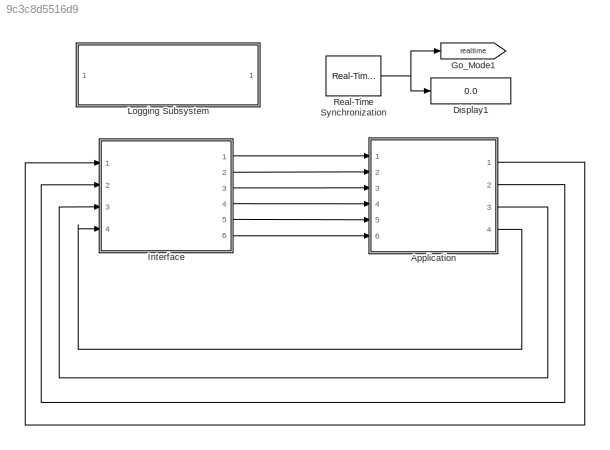
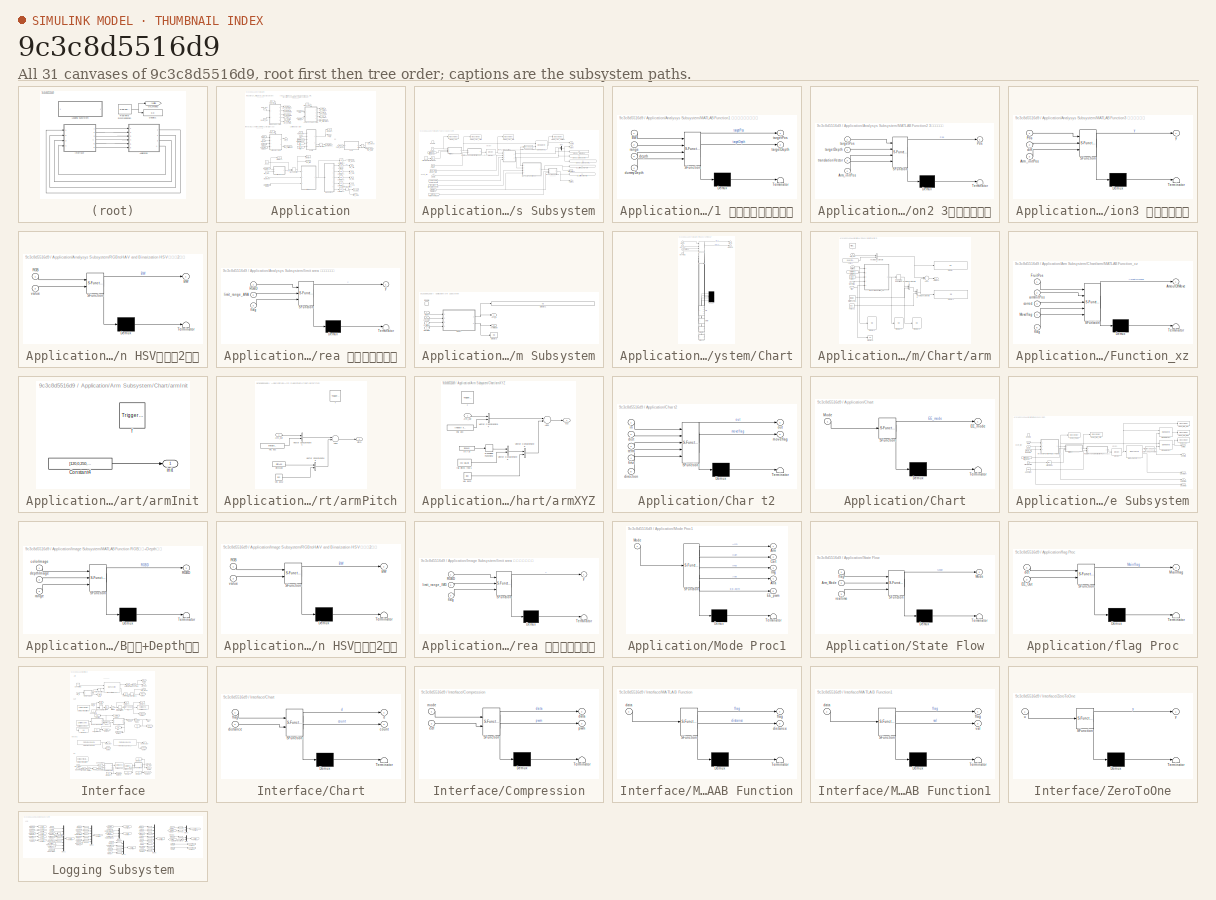
[diagram: thumbnail index - all 31 canvases of the model, root first then tree order]
MODEL slx_9c3c8d5516d9
KIND model
CONFIG AbsTol = auto
CONFIG EnableMultiTasking = off
CONFIG FixedStep = auto
CONFIG InitFcn = %run('settingParams_ver04.m')
CONFIG MaxStep = auto
CONFIG MinStep = auto
CONFIG RelTol = 1e-3
CONFIG SampleTimeConstraint = Unconstrained
CONFIG Solver = VariableStepAuto
CONFIG SolverName = VariableStepAuto
CONFIG StartTime = 0.0
CONFIG StopFcn = %run('AutomoveData.m')
CONFIG StopTime = inf
BLOCK [SubSystem] Application
  Ports = [6, 4]
  RequestExecContextInheritance = off
  Variant = off
BLOCK [SubSystem] Application/Analysys Subsystem
  Ports = [2, 4, 1]
  RequestExecContextInheritance = off
  TreatAsAtomicUnit = on
  Variant = off
BLOCK [Constant] Application/Analysys Subsystem/1:right, other:left
  SampleTime = dt
BLOCK [Outport] Application/Analysys Subsystem/AnaImg
  IconDisplay = Port number
  Port = 2
BLOCK [DataTypeConversion] Application/Analysys Subsystem/Data Type Conversion1
  RndMeth = Floor
  SaturateOnIntegerOverflow = off
BLOCK [Inport] Application/Analysys Subsystem/Depth
  IconDisplay = Port number
  Port = 2
BLOCK [Display] Application/Analysys Subsystem/Dispay_targeDepth
  Decimation = 1
  Ports = [1]
BLOCK [Display] Application/Analysys Subsystem/Dispay_targeDepth1
  Decimation = 1
  Ports = [1]
BLOCK [Display] Application/Analysys Subsystem/Dispay_targetPos
  Decimation = 1
  Ports = [1]
BLOCK [Reference] Application/Analysys Subsystem/Draw Markers2  REF=visiontextngfix/Draw Markers
  Ports = [2, 1]
  SourceBlock = visiontextngfix/Draw Markers
  SourceProductBaseCode = VP
  SourceProductName = Computer Vision System Toolbox
  SourceType = Draw Markers
BLOCK [EnablePort] Application/Analysys Subsystem/Enable
  Ports = []
  PropagateVarSize = During execution
BLOCK [Reference] Application/Analysys Subsystem/Erosion  REF=visionmorphops/Erosion
  Ports = [1, 1]
  SourceBlock = visionmorphops/Erosion
  SourceProductBaseCode = VP
  SourceProductName = Computer Vision System Toolbox
  SourceType = Erosion
BLOCK [Outport] Application/Analysys Subsystem/FruitPos
  IconDisplay = Port number
BLOCK [SubSystem] Application/Analysys Subsystem/MATLAB Function1 収穫対象果実の検出
  ErrorFcn = Stateflow.Translate.translate
  PermitHierarchicalResolution = ExplicitOnly
  Ports = [4, 2]
  RequestExecContextInheritance = off
  SFBlockType = MATLAB Function
  TreatAsAtomicUnit = on
  Variant = off
BLOCK [Demux] Application/Analysys Subsystem/MATLAB Function1 収穫対象果実の検出/ Demux 
  Outputs = 1
  Ports = [1, 1]
BLOCK [S-Function] Application/Analysys Subsystem/MATLAB Function1 収穫対象果実の検出/ SFunction 
  EnableBusSupport = on
  FunctionName = sf_sfun
  PortCounts = [4 3]
  Ports = [4, 3]
  SFcnIsStateOwnerBlock = off
  SFunctionDeploymentMode = off
  Tag = Stateflow S-Function rail_ver01_0311_Nomotor 4
BLOCK [Terminator] Application/Analysys Subsystem/MATLAB Function1 収穫対象果実の検出/ Terminator 
BLOCK [Inport] Application/Analysys Subsystem/MATLAB Function1 収穫対象果実の検出/BW
  IconDisplay = Port number
BLOCK [Inport] Application/Analysys Subsystem/MATLAB Function1 収穫対象果実の検出/depth
  IconDisplay = Port number
  Port = 3
BLOCK [Inport] Application/Analysys Subsystem/MATLAB Function1 収穫対象果実の検出/dummyDepth
  IconDisplay = Port number
  Port = 4
BLOCK [Inport] Application/Analysys Subsystem/MATLAB Function1 収穫対象果実の検出/range
  IconDisplay = Port number
  Port = 2
BLOCK [Outport] Application/Analysys Subsystem/MATLAB Function1 収穫対象果実の検出/targetDepth
  IconDisplay = Port number
  Port = 2
BLOCK [Outport] Application/Analysys Subsystem/MATLAB Function1 収穫対象果実の検出/targetPos
  IconDisplay = Port number
BLOCK [SubSystem] Application/Analysys Subsystem/MATLAB Function2 3次元位置検出
  ErrorFcn = Stateflow.Translate.translate
  PermitHierarchicalResolution = ExplicitOnly
  Ports = [4, 1]
  RequestExecContextInheritance = off
  SFBlockType = MATLAB Function
  TreatAsAtomicUnit = on
  Variant = off
BLOCK [Demux] Application/Analysys Subsystem/MATLAB Function2 3次元位置検出/ Demux 
  Outputs = 1
  Ports = [1, 1]
BLOCK [S-Function] Application/Analysys Subsystem/MATLAB Function2 3次元位置検出/ SFunction 
  EnableBusSupport = on
  FunctionName = sf_sfun
  PortCounts = [4 2]
  Ports = [4, 2]
  SFcnIsStateOwnerBlock = off
  SFunctionDeploymentMode = off
  Tag = Stateflow S-Function rail_ver01_0311_Nomotor 9
BLOCK [Terminator] Application/Analysys Subsystem/MATLAB Function2 3次元位置検出/ Terminator 
BLOCK [Inport] Application/Analysys Subsystem/MATLAB Function2 3次元位置検出/Arm_initPos
  IconDisplay = Port number
  Port = 4
BLOCK [Outport] Application/Analysys Subsystem/MATLAB Function2 3次元位置検出/Pos
  IconDisplay = Port number
BLOCK [Inport] Application/Analysys Subsystem/MATLAB Function2 3次元位置検出/targetDepth
  IconDisplay = Port number
  Port = 2
BLOCK [Inport] Application/Analysys Subsystem/MATLAB Function2 3次元位置検出/targetPos
  IconDisplay = Port number
BLOCK [Inport] Application/Analysys Subsystem/MATLAB Function2 3次元位置検出/translationVector
  IconDisplay = Port number
  Port = 3
BLOCK [SubSystem] Application/Analysys Subsystem/MATLAB Function3 直線距離算出
  ErrorFcn = Stateflow.Translate.translate
  PermitHierarchicalResolution = ExplicitOnly
  Ports = [3, 1]
  RequestExecContextInheritance = off
  SFBlockType = MATLAB Function
  TreatAsAtomicUnit = on
  Variant = off
BLOCK [Demux] Application/Analysys Subsystem/MATLAB Function3 直線距離算出/ Demux 
  Outputs = 1
  Ports = [1, 1]
BLOCK [S-Function] Application/Analysys Subsystem/MATLAB Function3 直線距離算出/ SFunction 
  EnableBusSupport = on
  FunctionName = sf_sfun
  PortCounts = [3 2]
  Ports = [3, 2]
  SFcnIsStateOwnerBlock = off
  SFunctionDeploymentMode = off
  Tag = Stateflow S-Function rail_ver01_0311_Nomotor 19
BLOCK [Terminator] Application/Analysys Subsystem/MATLAB Function3 直線距離算出/ Terminator 
BLOCK [Inport] Application/Analysys Subsystem/MATLAB Function3 直線距離算出/Arm_initPos
  IconDisplay = Port number
  Port = 3
BLOCK [Inport] Application/Analysys Subsystem/MATLAB Function3 直線距離算出/Pos
  IconDisplay = Port number
BLOCK [Inport] Application/Analysys Subsystem/MATLAB Function3 直線距離算出/diff
  IconDisplay = Port number
  Port = 2
BLOCK [Outport] Application/Analysys Subsystem/MATLAB Function3 直線距離算出/y
  IconDisplay = Port number
BLOCK [Mux] Application/Analysys Subsystem/Mux
  DisplayOption = bar
  Inputs = 2
  Ports = [2, 1]
BLOCK [Outport] Application/Analysys Subsystem/OrigFruitPos
  IconDisplay = Port number
  Port = 4
BLOCK [Inport] Application/Analysys Subsystem/RGBD
  IconDisplay = Port number
BLOCK [SubSystem] Application/Analysys Subsystem/RGBtoHAV and Binarization HSV変換と2値化
  ErrorFcn = Stateflow.Translate.translate
  PermitHierarchicalResolution = ExplicitOnly
  Ports = [2, 1]
  RequestExecContextInheritance = off
  SFBlockType = MATLAB Function
  TreatAsAtomicUnit = on
  Variant = off
BLOCK [Demux] Application/Analysys Subsystem/RGBtoHAV and Binarization HSV変換と2値化/ Demux 
  Outputs = 1
  Ports = [1, 1]
BLOCK [S-Function] Application/Analysys Subsystem/RGBtoHAV and Binarization HSV変換と2値化/ SFunction 
  EnableBusSupport = on
  FunctionName = sf_sfun
  PortCounts = [2 2]
  Ports = [2, 2]
  SFcnIsStateOwnerBlock = off
  SFunctionDeploymentMode = off
  Tag = Stateflow S-Function rail_ver01_0311_Nomotor 21
BLOCK [Terminator] Application/Analysys Subsystem/RGBtoHAV and Binarization HSV変換と2値化/ Terminator 
BLOCK [Outport] Application/Analysys Subsystem/RGBtoHAV and Binarization HSV変換と2値化/BW
  IconDisplay = Port number
BLOCK [Inport] Application/Analysys Subsystem/RGBtoHAV and Binarization HSV変換と2値化/RGB
  IconDisplay = Port number
BLOCK [Inport] Application/Analysys Subsystem/RGBtoHAV and Binarization HSV変換と2値化/value
  IconDisplay = Port number
  Port = 2
BLOCK [Reference] Application/Analysys Subsystem/Slider Gain1  REF=simulink/Math
Operations/Slider
Gain
  Ports = [1, 1]
  SourceBlock = simulink/Math\nOperations/Slider\nGain
  SourceProductBaseCode = SL
  SourceProductName = Simulink
  SourceType = Slider Gain
BLOCK [Outport] Application/Analysys Subsystem/Target
  IconDisplay = Port number
  Port = 3
BLOCK [VideoViewer] Application/Analysys Subsystem/Viewer_ANA_BW
  Commented = on
  FigPos = [1507 804 358 276]
  Ports = [1]
  ScopeSpecificationString = vipscopes.VideoViewerScopeCfg('CurrentConfiguration', extmgr.ConfigurationSet(extmgr.Configuration('Core','General UI',true),extmgr.Configuration('Core','Source UI',true),extmgr.Configuration('Sources','WiredSimulink',true),extmgr.Configuration('Visuals','Video',true),extmgr.Configuration('Tools','Image Navigation Tools',true,'Magnification',0.59089326742324),extmgr.Configuration('Tools','Image To...<+109ch>
  colormapValue = gray(256)
BLOCK [VideoViewer] Application/Analysys Subsystem/Viewer_ANA_Fruitdet
  Commented = on
  FigPos = [1523 1037 354 274]
  Ports = [1]
  ScopeSpecificationString = vipscopes.VideoViewerScopeCfg('CurrentConfiguration', extmgr.ConfigurationSet(extmgr.Configuration('Core','General UI',true),extmgr.Configuration('Core','Source UI',true),extmgr.Configuration('Sources','WiredSimulink',true),extmgr.Configuration('Visuals','Video',true),extmgr.Configuration('Tools','Image Navigation Tools',true,'Magnification',0.586168198078137),extmgr.Configuration('Tools','Image T...<+109ch>
  colormapValue = gray(256)
BLOCK [VideoViewer] Application/Analysys Subsystem/Viewer_ANA_Limit
  Commented = on
  FigPos = [1046 852 439 316]
  Ports = [1]
  ScopeSpecificationString = vipscopes.VideoViewerScopeCfg('CurrentConfiguration', extmgr.ConfigurationSet(extmgr.Configuration('Core','General UI',true),extmgr.Configuration('Core','Source UI',true),extmgr.Configuration('Sources','WiredSimulink',true),extmgr.Configuration('Visuals','Video',true),extmgr.Configuration('Tools','Image Navigation Tools',true,'Magnification',0.686691586566987),extmgr.Configuration('Tools','Image T...<+110ch>
  colormapValue = gray(256)
BLOCK [VideoViewer] Application/Analysys Subsystem/Viewer_Ana
  Commented = on
  FigPos = [987 1052 418 304]
  Ports = [1]
  ScopeSpecificationString = vipscopes.VideoViewerScopeCfg('CurrentConfiguration', extmgr.ConfigurationSet(extmgr.Configuration('Core','General UI',true),extmgr.Configuration('Core','Source UI',true),extmgr.Configuration('Sources','WiredSimulink',true),extmgr.Configuration('Visuals','Video',true),extmgr.Configuration('Tools','Image Navigation Tools',true,'Magnification',0.658018867924528),extmgr.Configuration('Tools','Image T...<+134ch>
  colormapValue = gray(256)
BLOCK [Display] Application/Analysys Subsystem/[x, y, z](from Arm to Fruit)
  Decimation = 1
  Ports = [1]
BLOCK [Display] Application/Analysys Subsystem/[x, y, z](from Cam to Fruit)
  Decimation = 1
  Ports = [1]
BLOCK [Constant] Application/Analysys Subsystem/armInitPos
  SampleTime = dt
  Value = armInitPos
BLOCK [Constant] Application/Analysys Subsystem/dummyDepth
  SampleTime = dt
  Value = dummyDepth
BLOCK [SubSystem] Application/Analysys Subsystem/limit area 着目領域の限定
  ErrorFcn = Stateflow.Translate.translate
  PermitHierarchicalResolution = ExplicitOnly
  Ports = [3, 1]
  RequestExecContextInheritance = off
  SFBlockType = MATLAB Function
  TreatAsAtomicUnit = on
  Variant = off
BLOCK [Demux] Application/Analysys Subsystem/limit area 着目領域の限定/ Demux 
  Outputs = 1
  Ports = [1, 1]
BLOCK [S-Function] Application/Analysys Subsystem/limit area 着目領域の限定/ SFunction 
  EnableBusSupport = on
  FunctionName = sf_sfun
  PortCounts = [3 2]
  Ports = [3, 2]
  SFcnIsStateOwnerBlock = off
  SFunctionDeploymentMode = off
  Tag = Stateflow S-Function rail_ver01_0311_Nomotor 13
BLOCK [Terminator] Application/Analysys Subsystem/limit area 着目領域の限定/ Terminator 
BLOCK [Inport] Application/Analysys Subsystem/limit area 着目領域の限定/RGBD
  IconDisplay = Port number
BLOCK [Inport] Application/Analysys Subsystem/limit area 着目領域の限定/flag
  IconDisplay = Port number
  Port = 3
BLOCK [Inport] Application/Analysys Subsystem/limit area 着目領域の限定/limit_range_ANA
  IconDisplay = Port number
  Port = 2
BLOCK [Outport] Application/Analysys Subsystem/limit area 着目領域の限定/y
  IconDisplay = Port number
BLOCK [Constant] Application/Analysys Subsystem/limit_range
  SampleTime = dt
  Value = limit_range_ANA
BLOCK [Constant] Application/Analysys Subsystem/range_mm
  SampleTime = dt
  Value = range_mm
BLOCK [Constant] Application/Analysys Subsystem/relationofArmCam
  SampleTime = dt
  Value = relationOfArmCam
BLOCK [Constant] Application/Analysys Subsystem/translationVector
  SampleTime = dt
  Value = translationVector
BLOCK [Constant] Application/Analysys Subsystem/value
  SampleTime = dt
  Value = value
BLOCK [SubSystem] Application/Arm Subsystem
  Ports = [4, 2, 1]
  RequestExecContextInheritance = off
  TreatAsAtomicUnit = on
  Variant = off
BLOCK [Outport] Application/Arm Subsystem/ArmMode
  IconDisplay = Port number
  InitialOutput = 0
  Port = 2
  PortDimensions = 1
BLOCK [Outport] Application/Arm Subsystem/Arm_In
  IconDisplay = Port number
  InitialOutput = armInitPos
BLOCK [Inport] Application/Arm Subsystem/Arm_Out
  IconDisplay = Port number
  Port = 2
BLOCK [SubSystem] Application/Arm Subsystem/Chart
  ErrorFcn = Stateflow.Translate.translate
  PermitHierarchicalResolution = ExplicitOnly
  Ports = [4, 2]
  RequestExecContextInheritance = off
  SFBlockType = Chart
  TreatAsAtomicUnit = on
  Variant = off
BLOCK [Demux] Application/Arm Subsystem/Chart/ Demux 
  Ports = [1, 4]
BLOCK [S-Function] Application/Arm Subsystem/Chart/ SFunction 
  EnableBusSupport = on
  FunctionName = sf_sfun
  PortCounts = [8 9]
  Ports = [8, 9]
  SFcnIsStateOwnerBlock = off
  SFunctionDeploymentMode = off
  Tag = Stateflow S-Function rail_ver01_0311_Nomotor 15
BLOCK [Outport] Application/Arm Subsystem/Chart/ArmMode
  IconDisplay = Port number
  Port = 2
BLOCK [Outport] Application/Arm Subsystem/Chart/Arm_In
  IconDisplay = Port number
BLOCK [Inport] Application/Arm Subsystem/Chart/Arm_out
  IconDisplay = Port number
  Port = 2
BLOCK [Inport] Application/Arm Subsystem/Chart/FruitPos
  IconDisplay = Port number
  Port = 3
BLOCK [Inport] Application/Arm Subsystem/Chart/Mode
  IconDisplay = Port number
BLOCK [Inport] Application/Arm Subsystem/Chart/Moveflag
  IconDisplay = Port number
  Port = 4
BLOCK [SubSystem] Application/Arm Subsystem/Chart/arm
  Ports = [4, 1, 0, 1]
  PreDeleteFcn = Stateflow.SLINSF.SimulinkMan.removePreDeleteFcn
  RequestExecContextInheritance = off
  UndoDeleteFcn = Stateflow.SLINSF.SimulinkMan.restorePreDeleteFcn
  Variant = off
BLOCK [Sum] Application/Arm Subsystem/Chart/arm/Add1
  InputSameDT = off
  OutDataTypeStr = Inherit: Inherit via internal rule
  Ports = [2, 1]
  SaturateOnIntegerOverflow = off
BLOCK [Outport] Application/Arm Subsystem/Chart/arm/ArmMove
  IconDisplay = Port number
  InitialOutput = 0
  OutputWhenDisabled = reset
BLOCK [Inport] Application/Arm Subsystem/Chart/arm/Arm_out
  IconDisplay = Port number
  OutDataTypeStr = double
  PortDimensions = [1 6]
  SignalType = real
  VarSizeSig = No
BLOCK [Display] Application/Arm Subsystem/Chart/arm/Display
  Decimation = 1
  Ports = [1]
BLOCK [Display] Application/Arm Subsystem/Chart/arm/Display1
  Decimation = 1
  Ports = [1]
BLOCK [Display] Application/Arm Subsystem/Chart/arm/Display2
  Decimation = 1
  Ports = [1]
BLOCK [Display] Application/Arm Subsystem/Chart/arm/Display3
  Decimation = 1
  Ports = [1]
BLOCK [Display] Application/Arm Subsystem/Chart/arm/Display4
  Decimation = 1
  Ports = [1]
BLOCK [Display] Application/Arm Subsystem/Chart/arm/Display5
  Decimation = 1
  Ports = [1]
BLOCK [Inport] Application/Arm Subsystem/Chart/arm/FruitPos
  IconDisplay = Port number
  OutDataTypeStr = double
  Port = 2
  PortDimensions = [1 3]
  SignalType = real
  VarSizeSig = No
BLOCK [SubSystem] Application/Arm Subsystem/Chart/arm/MATLAB Function_xz
  ErrorFcn = Stateflow.Translate.translate
  PermitHierarchicalResolution = ExplicitOnly
  Ports = [5, 1]
  RequestExecContextInheritance = off
  SFBlockType = MATLAB Function
  TreatAsAtomicUnit = on
  Variant = off
BLOCK [Demux] Application/Arm Subsystem/Chart/arm/MATLAB Function_xz/ Demux 
  Outputs = 1
  Ports = [1, 1]
BLOCK [S-Function] Application/Arm Subsystem/Chart/arm/MATLAB Function_xz/ SFunction 
  EnableBusSupport = on
  FunctionName = sf_sfun
  PortCounts = [5 2]
  Ports = [5, 2]
  SFcnIsStateOwnerBlock = off
  SFunctionDeploymentMode = off
  Tag = Stateflow S-Function rail_ver01_0311_Nomotor 2
BLOCK [Terminator] Application/Arm Subsystem/Chart/arm/MATLAB Function_xz/ Terminator 
BLOCK [Outport] Application/Arm Subsystem/Chart/arm/MATLAB Function_xz/AmoutOfMove
  IconDisplay = Port number
BLOCK [Inport] Application/Arm Subsystem/Chart/arm/MATLAB Function_xz/FruitPos
  IconDisplay = Port number
BLOCK [Inport] Application/Arm Subsystem/Chart/arm/MATLAB Function_xz/Moveflag
  IconDisplay = Port number
  Port = 4
BLOCK [Inport] Application/Arm Subsystem/Chart/arm/MATLAB Function_xz/armInitPos
  IconDisplay = Port number
  Port = 2
BLOCK [Inport] Application/Arm Subsystem/Chart/arm/MATLAB Function_xz/correct
  IconDisplay = Port number
  Port = 3
BLOCK [Inport] Application/Arm Subsystem/Chart/arm/MATLAB Function_xz/flag
  IconDisplay = Port number
  Port = 5
BLOCK [Inport] Application/Arm Subsystem/Chart/arm/Moveflag
  IconDisplay = Port number
  OutDataTypeStr = double
  Port = 3
  PortDimensions = 1
  SignalType = real
  VarSizeSig = No
BLOCK [Rounding] Application/Arm Subsystem/Chart/arm/Rounding Function2
BLOCK [Concatenate] Application/Arm Subsystem/Chart/arm/Vector Concatenate4
  Ports = [2, 1]
BLOCK [Concatenate] Application/Arm Subsystem/Chart/arm/Vector Concatenate5
  Ports = [2, 1]
BLOCK [Concatenate] Application/Arm Subsystem/Chart/arm/Vector Concatenate6
  Ports = [2, 1]
BLOCK [Constant] Application/Arm Subsystem/Chart/arm/armInitPos
  Value = armInitPos
BLOCK [Constant] Application/Arm Subsystem/Chart/arm/correct
  Value = correct
BLOCK [TriggerPort] Application/Arm Subsystem/Chart/arm/f
  CopyFcn = Stateflow.SLINSF.SimulinkMan.removeBlockPreDeleteFcn
  Ports = []
  PreDeleteFcn = Stateflow.SLINSF.SimulinkMan.unsafePredeleteFcn
  StatesWhenEnabling = held
  TriggerType = function-call
  VariantControl = Variant
BLOCK [Inport] Application/Arm Subsystem/Chart/arm/flag
  IconDisplay = Port number
  OutDataTypeStr = double
  Port = 4
  PortDimensions = 1
  SignalType = real
  VarSizeSig = No
BLOCK [Constant] Application/Arm Subsystem/Chart/arm/roll, pitch, yow1
  Value = [0;0;0]
BLOCK [Constant] Application/Arm Subsystem/Chart/arm/vel, acc
  Value = [velocity acceleration]
BLOCK [Constant] Application/Arm Subsystem/Chart/arm/vel, acc2
  Value = [0;0]
BLOCK [SubSystem] Application/Arm Subsystem/Chart/armInit
  Ports = [0, 1, 0, 1]
  PreDeleteFcn = Stateflow.SLINSF.SimulinkMan.removePreDeleteFcn
  RequestExecContextInheritance = off
  UndoDeleteFcn = Stateflow.SLINSF.SimulinkMan.restorePreDeleteFcn
  Variant = off
BLOCK [Constant] Application/Arm Subsystem/Chart/armInit/Constant4
  Value = [120,0,250,0,0,0,20,40]
BLOCK [TriggerPort] Application/Arm Subsystem/Chart/armInit/f
  CopyFcn = Stateflow.SLINSF.SimulinkMan.removeBlockPreDeleteFcn
  Ports = []
  PreDeleteFcn = Stateflow.SLINSF.SimulinkMan.unsafePredeleteFcn
  StatesWhenEnabling = held
  TriggerType = function-call
  VariantControl = Variant
BLOCK [Outport] Application/Arm Subsystem/Chart/armInit/init
  IconDisplay = Port number
  InitialOutput = 0
  OutputWhenDisabled = reset
  PortDimensions = [1 8]
BLOCK [SubSystem] Application/Arm Subsystem/Chart/armPitch
  Ports = [1, 1, 0, 1]
  PreDeleteFcn = Stateflow.SLINSF.SimulinkMan.removePreDeleteFcn
  RequestExecContextInheritance = off
  UndoDeleteFcn = Stateflow.SLINSF.SimulinkMan.restorePreDeleteFcn
  Variant = off
BLOCK [Sum] Application/Arm Subsystem/Chart/armPitch/Add1
  InputSameDT = off
  OutDataTypeStr = Inherit: Inherit via internal rule
  Ports = [2, 1]
  SaturateOnIntegerOverflow = off
BLOCK [Inport] Application/Arm Subsystem/Chart/armPitch/Arm_out
  IconDisplay = Port number
  OutDataTypeStr = double
  PortDimensions = [1 6]
  SignalType = real
  VarSizeSig = No
BLOCK [Concatenate] Application/Arm Subsystem/Chart/armPitch/Vector Concatenate4
  Ports = [2, 1]
BLOCK [Concatenate] Application/Arm Subsystem/Chart/armPitch/Vector Concatenate6
  Ports = [2, 1]
BLOCK [TriggerPort] Application/Arm Subsystem/Chart/armPitch/f
  CopyFcn = Stateflow.SLINSF.SimulinkMan.removeBlockPreDeleteFcn
  Ports = []
  PreDeleteFcn = Stateflow.SLINSF.SimulinkMan.unsafePredeleteFcn
  StatesWhenEnabling = held
  TriggerType = function-call
  VariantControl = Variant
BLOCK [Outport] Application/Arm Subsystem/Chart/armPitch/pitch
  IconDisplay = Port number
  InitialOutput = 0
  OutputWhenDisabled = reset
BLOCK [Constant] Application/Arm Subsystem/Chart/armPitch/pitchAdd
  Value = pitchAdd
BLOCK [Constant] Application/Arm Subsystem/Chart/armPitch/vel, acc
  Value = [velocity acceleration]
BLOCK [Constant] Application/Arm Subsystem/Chart/armPitch/vel, acc2
  Value = [0;0]
BLOCK [SubSystem] Application/Arm Subsystem/Chart/armXYZ
  Ports = [1, 1, 0, 1]
  PreDeleteFcn = Stateflow.SLINSF.SimulinkMan.removePreDeleteFcn
  RequestExecContextInheritance = off
  UndoDeleteFcn = Stateflow.SLINSF.SimulinkMan.restorePreDeleteFcn
  Variant = off
BLOCK [Sum] Application/Arm Subsystem/Chart/armXYZ/Add1
  InputSameDT = off
  OutDataTypeStr = Inherit: Inherit via internal rule
  Ports = [2, 1]
  SaturateOnIntegerOverflow = off
BLOCK [Inport] Application/Arm Subsystem/Chart/armXYZ/Arm_out
  IconDisplay = Port number
  OutDataTypeStr = double
  PortDimensions = [1 6]
  SignalType = real
  VarSizeSig = No
BLOCK [Rounding] Application/Arm Subsystem/Chart/armXYZ/Rounding Function2
BLOCK [Concatenate] Application/Arm Subsystem/Chart/armXYZ/Vector Concatenate4
  Ports = [2, 1]
BLOCK [Concatenate] Application/Arm Subsystem/Chart/armXYZ/Vector Concatenate5
  Ports = [2, 1]
BLOCK [Concatenate] Application/Arm Subsystem/Chart/armXYZ/Vector Concatenate6
  Ports = [2, 1]
BLOCK [Constant] Application/Arm Subsystem/Chart/armXYZ/[x y z]
  Value = [35, 0, 10]
BLOCK [TriggerPort] Application/Arm Subsystem/Chart/armXYZ/f
  CopyFcn = Stateflow.SLINSF.SimulinkMan.removeBlockPreDeleteFcn
  Ports = []
  PreDeleteFcn = Stateflow.SLINSF.SimulinkMan.unsafePredeleteFcn
  StatesWhenEnabling = held
  TriggerType = function-call
  VariantControl = Variant
BLOCK [Constant] Application/Arm Subsystem/Chart/armXYZ/roll, pitch, yow1
  Value = [0;-15;0]
BLOCK [Constant] Application/Arm Subsystem/Chart/armXYZ/vel, acc
  Value = [velocity acceleration]
BLOCK [Constant] Application/Arm Subsystem/Chart/armXYZ/vel, acc2
  Value = [0;0]
BLOCK [Outport] Application/Arm Subsystem/Chart/armXYZ/xyz
  IconDisplay = Port number
  InitialOutput = 0
  OutputWhenDisabled = reset
BLOCK [Display] Application/Arm Subsystem/Display1
  Decimation = 1
  Ports = [1]
BLOCK [Display] Application/Arm Subsystem/Display3
  Decimation = 1
  Ports = [1]
BLOCK [EnablePort] Application/Arm Subsystem/Enable
  Ports = []
  StatesWhenEnabling = reset
BLOCK [Inport] Application/Arm Subsystem/FruitPos
  IconDisplay = Port number
  Port = 3
BLOCK [Inport] Application/Arm Subsystem/Mode
  IconDisplay = Port number
  PortDimensions = 1
BLOCK [Inport] Application/Arm Subsystem/Moveflag
  IconDisplay = Port number
  Port = 4
BLOCK [Outport] Application/Arm_In
  IconDisplay = Port number
BLOCK [Inport] Application/Arm_Mode
  IconDisplay = Port number
  Port = 6
BLOCK [Inport] Application/Arm_Out
  IconDisplay = Port number
BLOCK [Outport] Application/Cart_in
  IconDisplay = Port number
  Port = 2
BLOCK [SubSystem] Application/Char t2
  ErrorFcn = Stateflow.Translate.translate
  PermitHierarchicalResolution = ExplicitOnly
  Ports = [5, 2]
  RequestExecContextInheritance = off
  SFBlockType = Chart
  TreatAsAtomicUnit = on
  Variant = off
BLOCK [Demux] Application/Char t2/ Demux 
  Outputs = 1
  Ports = [1, 1]
BLOCK [S-Function] Application/Char t2/ SFunction 
  EnableBusSupport = on
  FunctionName = sf_sfun
  PortCounts = [5 3]
  Ports = [5, 3]
  SFcnIsStateOwnerBlock = off
  SFunctionDeploymentMode = off
  Tag = Stateflow S-Function rail_ver01_0311_Nomotor 17
BLOCK [Terminator] Application/Char t2/ Terminator 
BLOCK [Inport] Application/Char t2/direction
  IconDisplay = Port number
  Port = 5
BLOCK [Inport] Application/Char t2/dist
  IconDisplay = Port number
  Port = 2
BLOCK [Inport] Application/Char t2/first
  IconDisplay = Port number
  Port = 4
BLOCK [Inport] Application/Char t2/in
  IconDisplay = Port number
BLOCK [Outport] Application/Char t2/moveflag
  IconDisplay = Port number
  Port = 2
BLOCK [Outport] Application/Char t2/out
  IconDisplay = Port number
BLOCK [Inport] Application/Char t2/term
  IconDisplay = Port number
  Port = 3
BLOCK [SubSystem] Application/Chart
  ErrorFcn = Stateflow.Translate.translate
  PermitHierarchicalResolution = ExplicitOnly
  Ports = [1, 1]
  RequestExecContextInheritance = off
  SFBlockType = Chart
  TreatAsAtomicUnit = on
  Variant = off
BLOCK [Demux] Application/Chart/ Demux 
  Outputs = 1
  Ports = [1, 1]
BLOCK [S-Function] Application/Chart/ SFunction 
  EnableBusSupport = on
  FunctionName = sf_sfun
  PortCounts = [1 2]
  Ports = [1, 2]
  SFcnIsStateOwnerBlock = off
  SFunctionDeploymentMode = off
  Tag = Stateflow S-Function rail_ver01_0311_Nomotor 10
BLOCK [Terminator] Application/Chart/ Terminator 
BLOCK [Outport] Application/Chart/EE_mode
  IconDisplay = Port number
BLOCK [Inport] Application/Chart/Mode
  IconDisplay = Port number
BLOCK [Inport] Application/Depth_Out
  IconDisplay = Port number
  Port = 5
BLOCK [Display] Application/Display1
  Decimation = 1
  Format = long
  Ports = [1]
BLOCK [Display] Application/Display2
  Decimation = 1
  Format = long
  Ports = [1]
BLOCK [Display] Application/Display6
  Decimation = 1
  Format = long
  Ports = [1]
BLOCK [Inport] Application/Dist
  IconDisplay = Port number
  Port = 2
BLOCK [Inport] Application/EE_Out
  IconDisplay = Port number
  Port = 3
BLOCK [Outport] Application/EE_mode
  IconDisplay = Port number
  Port = 3
BLOCK [Outport] Application/EE_pwm
  IconDisplay = Port number
  Port = 4
BLOCK [From] Application/From
  GotoTag = RGBDImg
  TagVisibility = global
BLOCK [From] Application/From1
  GotoTag = DepthImg
  TagVisibility = global
BLOCK [From] Application/From12
  GotoTag = Mode
  TagVisibility = global
BLOCK [From] Application/From13
  GotoTag = FruitPos
  TagVisibility = global
BLOCK [From] Application/From14
  GotoTag = Moveflag
  TagVisibility = global
BLOCK [From] Application/From2
  GotoTag = ClusterDet
  TagVisibility = global
BLOCK [From] Application/From3
  GotoTag = realtime
  TagVisibility = global
BLOCK [From] Application/From_Ana
  GotoTag = Ana
  TagVisibility = global
BLOCK [From] Application/From_Arm
  GotoTag = Arm
  TagVisibility = global
BLOCK [From] Application/From_Cart
  GotoTag = Cart
  TagVisibility = global
BLOCK [From] Application/From_Ima
  GotoTag = Ima
  TagVisibility = global
BLOCK [From] Application/From_Mode1
  GotoTag = Mode
  TagVisibility = global
BLOCK [Goto] Application/Go_Ana
  GotoTag = Ana
  TagVisibility = global
BLOCK [Goto] Application/Go_AnaImg
  GotoTag = AnaImg
  TagVisibility = global
BLOCK [Goto] Application/Go_Arm
  GotoTag = Arm
  TagVisibility = global
BLOCK [Goto] Application/Go_ArmMode
  GotoTag = ArmState
  TagVisibility = global
BLOCK [Goto] Application/Go_Cart
  GotoTag = Cart
  TagVisibility = global
BLOCK [Goto] Application/Go_Centroid
  GotoTag = Centroid
  TagVisibility = global
BLOCK [Goto] Application/Go_ClusterDet
  GotoTag = ClusterDet
  TagVisibility = global
BLOCK [Goto] Application/Go_DepthImg
  GotoTag = DepthImg
  TagVisibility = global
BLOCK [Goto] Application/Go_DetImg
  GotoTag = DetImg
  TagVisibility = global
BLOCK [Goto] Application/Go_EE1
  GotoTag = EE_pwm
  TagVisibility = global
BLOCK [Goto] Application/Go_EE2
  GotoTag = EE_mode
  TagVisibility = global
BLOCK [Goto] Application/Go_FruitPos
  GotoTag = FruitPos
  TagVisibility = global
BLOCK [Goto] Application/Go_Ima
  GotoTag = Ima
  TagVisibility = global
BLOCK [Goto] Application/Go_Mode
  GotoTag = Mode
  TagVisibility = global
BLOCK [Goto] Application/Go_Mode1
  GotoTag = Moveflag
  TagVisibility = global
BLOCK [Goto] Application/Go_OrigFruitPos
  GotoTag = OrigFruitPos
  TagVisibility = global
BLOCK [Goto] Application/Go_RGBDImg
  GotoTag = RGBDImg
  TagVisibility = global
BLOCK [Goto] Application/Go_Target
  GotoTag = Target
  TagVisibility = global
BLOCK [Goto] Application/Go_flag
  GotoTag = Mainflag
  TagVisibility = global
BLOCK [SubSystem] Application/Image Subsystem
  Ports = [2, 5, 1]
  RequestExecContextInheritance = off
  TreatAsAtomicUnit = on
  Variant = off
BLOCK [Constant] Application/Image Subsystem/1:right, other:left
  SampleTime = dt
BLOCK [Reference] Application/Image Subsystem/Blob Analysis 重心検出  REF=visionstatistics/Blob Analysis
  Ports = [1, 2]
  SourceBlock = visionstatistics/Blob Analysis
  SourceProductBaseCode = VP
  SourceProductName = Computer Vision System Toolbox
  SourceType = Blob Analysis
  Tag = vipblks_row_conv
BLOCK [Outport] Application/Image Subsystem/Centroid
  IconDisplay = Port number
  Port = 5
BLOCK [Outport] Application/Image Subsystem/ClusterDet
  IconDisplay = Port number
  InitialOutput = 0
  OutputWhenDisabled = reset
BLOCK [Constant] Application/Image Subsystem/Constant
  SampleTime = dt
  Value = value
BLOCK [DataTypeConversion] Application/Image Subsystem/Data Type Conversion
  RndMeth = Floor
  SaturateOnIntegerOverflow = off
BLOCK [Inport] Application/Image Subsystem/Depth
  IconDisplay = Port number
  Port = 2
BLOCK [Outport] Application/Image Subsystem/DepthImg
  IconDisplay = Port number
  Port = 3
BLOCK [Outport] Application/Image Subsystem/DetImg
  IconDisplay = Port number
  Port = 4
BLOCK [Reference] Application/Image Subsystem/Draw Markers1  REF=visiontextngfix/Draw Markers
  Ports = [2, 1]
  SourceBlock = visiontextngfix/Draw Markers
  SourceProductBaseCode = VP
  SourceProductName = Computer Vision System Toolbox
  SourceType = Draw Markers
BLOCK [Reference] Application/Image Subsystem/Draw Markers2  REF=visiontextngfix/Draw Markers
  Commented = on
  Ports = [2, 1]
  SourceBlock = visiontextngfix/Draw Markers
  SourceProductBaseCode = VP
  SourceProductName = Computer Vision System Toolbox
  SourceType = Draw Markers
BLOCK [EnablePort] Application/Image Subsystem/Enable
  Ports = []
  StatesWhenEnabling = reset
BLOCK [Reference] Application/Image Subsystem/Erosion  REF=visionmorphops/Erosion
  Ports = [1, 1]
  SourceBlock = visionmorphops/Erosion
  SourceProductBaseCode = VP
  SourceProductName = Computer Vision System Toolbox
  SourceType = Erosion
BLOCK [SubSystem] Application/Image Subsystem/MATLAB Function RGB画像+Depth画像
  ErrorFcn = Stateflow.Translate.translate
  PermitHierarchicalResolution = ExplicitOnly
  Ports = [3, 1]
  RequestExecContextInheritance = off
  SFBlockType = MATLAB Function
  TreatAsAtomicUnit = on
  Variant = off
BLOCK [Demux] Application/Image Subsystem/MATLAB Function RGB画像+Depth画像/ Demux 
  Outputs = 1
  Ports = [1, 1]
BLOCK [S-Function] Application/Image Subsystem/MATLAB Function RGB画像+Depth画像/ SFunction 
  EnableBusSupport = on
  FunctionName = sf_sfun
  PortCounts = [3 2]
  Ports = [3, 2]
  SFcnIsStateOwnerBlock = off
  SFunctionDeploymentMode = off
  Tag = Stateflow S-Function rail_ver01_0311_Nomotor 11
BLOCK [Terminator] Application/Image Subsystem/MATLAB Function RGB画像+Depth画像/ Terminator 
BLOCK [Outport] Application/Image Subsystem/MATLAB Function RGB画像+Depth画像/RGBD
  IconDisplay = Port number
BLOCK [Inport] Application/Image Subsystem/MATLAB Function RGB画像+Depth画像/colorImage
  IconDisplay = Port number
BLOCK [Inport] Application/Image Subsystem/MATLAB Function RGB画像+Depth画像/depthImage
  IconDisplay = Port number
  Port = 2
BLOCK [Inport] Application/Image Subsystem/MATLAB Function RGB画像+Depth画像/range
  IconDisplay = Port number
  Port = 3
BLOCK [Inport] Application/Image Subsystem/RGB
  IconDisplay = Port number
BLOCK [Outport] Application/Image Subsystem/RGBDImg
  IconDisplay = Port number
  Port = 2
BLOCK [SubSystem] Application/Image Subsystem/RGBtoHAV and Binarization HSV変換と2値化
  ErrorFcn = Stateflow.Translate.translate
  PermitHierarchicalResolution = ExplicitOnly
  Ports = [2, 1]
  RequestExecContextInheritance = off
  SFBlockType = MATLAB Function
  TreatAsAtomicUnit = on
  Variant = off
BLOCK [Demux] Application/Image Subsystem/RGBtoHAV and Binarization HSV変換と2値化/ Demux 
  Outputs = 1
  Ports = [1, 1]
BLOCK [S-Function] Application/Image Subsystem/RGBtoHAV and Binarization HSV変換と2値化/ SFunction 
  EnableBusSupport = on
  FunctionName = sf_sfun
  PortCounts = [2 2]
  Ports = [2, 2]
  SFcnIsStateOwnerBlock = off
  SFunctionDeploymentMode = off
  Tag = Stateflow S-Function rail_ver01_0311_Nomotor 12
BLOCK [Terminator] Application/Image Subsystem/RGBtoHAV and Binarization HSV変換と2値化/ Terminator 
BLOCK [Outport] Application/Image Subsystem/RGBtoHAV and Binarization HSV変換と2値化/BW
  IconDisplay = Port number
BLOCK [Inport] Application/Image Subsystem/RGBtoHAV and Binarization HSV変換と2値化/RGB
  IconDisplay = Port number
BLOCK [Inport] Application/Image Subsystem/RGBtoHAV and Binarization HSV変換と2値化/value
  IconDisplay = Port number
  Port = 2
BLOCK [Reference] Application/Image Subsystem/Slider Gain1  REF=simulink/Math
Operations/Slider
Gain
  Ports = [1, 1]
  SourceBlock = simulink/Math\nOperations/Slider\nGain
  SourceProductBaseCode = SL
  SourceProductName = Simulink
  SourceType = Slider Gain
BLOCK [VideoViewer] Application/Image Subsystem/Viewer_BW_IMG1
  Commented = on
  FigPos = [1515 729 355 276]
  Ports = [1]
  ScopeSpecificationString = vipscopes.VideoViewerScopeCfg('CurrentConfiguration', extmgr.ConfigurationSet(extmgr.Configuration('Core','General UI',true),extmgr.Configuration('Core','Source UI',true),extmgr.Configuration('Sources','WiredSimulink',true),extmgr.Configuration('Visuals','Video',true),extmgr.Configuration('Tools','Image Navigation Tools',true,'Magnification',0.59089326742324),extmgr.Configuration('Tools','Image To...<+135ch>
  colormapValue = gray(256)
BLOCK [VideoViewer] Application/Image Subsystem/Viewer_IMG_BW
  Commented = on
  FigPos = [1428 425 418 304]
  Ports = [1]
  ScopeSpecificationString = vipscopes.VideoViewerScopeCfg('CurrentConfiguration', extmgr.ConfigurationSet(extmgr.Configuration('Core','General UI',true),extmgr.Configuration('Core','Source UI',true),extmgr.Configuration('Sources','WiredSimulink',true),extmgr.Configuration('Visuals','Video',true),extmgr.Configuration('Tools','Image Navigation Tools',true),extmgr.Configuration('Tools','Image Tool',true),extmgr.Configuration('T...<+76ch>
BLOCK [VideoViewer] Application/Image Subsystem/Viewer_IMG_Limit
  Commented = on
  FigPos = [1037 437 400 321]
  Ports = [1]
  ScopeSpecificationString = vipscopes.VideoViewerScopeCfg('CurrentConfiguration', extmgr.ConfigurationSet(extmgr.Configuration('Core','General UI',true),extmgr.Configuration('Core','Source UI',true),extmgr.Configuration('Sources','WiredSimulink',true),extmgr.Configuration('Visuals','Video',true),extmgr.Configuration('Tools','Image Navigation Tools',true,'Magnification',0.696990116801438),extmgr.Configuration('Tools','Image T...<+110ch>
  colormapValue = gray(256)
BLOCK [VideoViewer] Application/Image Subsystem/Viewer_RGBD
  Commented = on
  FigPos = [678 444 400 321]
  Ports = [1]
  ScopeSpecificationString = vipscopes.VideoViewerScopeCfg('CurrentConfiguration', extmgr.ConfigurationSet(extmgr.Configuration('Core','General UI',true),extmgr.Configuration('Core','Source UI',true),extmgr.Configuration('Sources','WiredSimulink',true),extmgr.Configuration('Visuals','Video',true),extmgr.Configuration('Tools','Image Navigation Tools',true,'Magnification',0.696990116801438),extmgr.Configuration('Tools','Image T...<+109ch>
  colormapValue = gray(256)
BLOCK [VideoViewer] Application/Image Subsystem/Viewer_det
  Commented = on
  FigPos = [1453 485 453 364]
  Ports = [1]
  ScopeSpecificationString = vipscopes.VideoViewerScopeCfg('CurrentConfiguration', extmgr.ConfigurationSet(extmgr.Configuration('Core','General UI',true),extmgr.Configuration('Core','Source UI',true),extmgr.Configuration('Sources','WiredSimulink',true),extmgr.Configuration('Visuals','Video',true),extmgr.Configuration('Tools','Image Navigation Tools',true,'Magnification',0.799689842336521),extmgr.Configuration('Tools','Image T...<+110ch>
  colormapValue = gray(256)
BLOCK [SubSystem] Application/Image Subsystem/limit area 着目領域の限定
  ErrorFcn = Stateflow.Translate.translate
  PermitHierarchicalResolution = ExplicitOnly
  Ports = [3, 1]
  RequestExecContextInheritance = off
  SFBlockType = MATLAB Function
  TreatAsAtomicUnit = on
  Variant = off
BLOCK [Demux] Application/Image Subsystem/limit area 着目領域の限定/ Demux 
  Outputs = 1
  Ports = [1, 1]
BLOCK [S-Function] Application/Image Subsystem/limit area 着目領域の限定/ SFunction 
  EnableBusSupport = on
  FunctionName = sf_sfun
  PortCounts = [3 2]
  Ports = [3, 2]
  SFcnIsStateOwnerBlock = off
  SFunctionDeploymentMode = off
  Tag = Stateflow S-Function rail_ver01_0311_Nomotor 6
BLOCK [Terminator] Application/Image Subsystem/limit area 着目領域の限定/ Terminator 
BLOCK [Inport] Application/Image Subsystem/limit area 着目領域の限定/RGBD
  IconDisplay = Port number
BLOCK [Inport] Application/Image Subsystem/limit area 着目領域の限定/flag
  IconDisplay = Port number
  Port = 3
BLOCK [Inport] Application/Image Subsystem/limit area 着目領域の限定/limit_range_IMG
  IconDisplay = Port number
  Port = 2
BLOCK [Outport] Application/Image Subsystem/limit area 着目領域の限定/y
  IconDisplay = Port number
BLOCK [Constant] Application/Image Subsystem/limit_range
  SampleTime = dt
  Value = limit_range_IMG
BLOCK [Constant] Application/Image Subsystem/range(m)
  SampleTime = dt
  Value = range_m
BLOCK [ManualSwitch] Application/Manual Switch
BLOCK [SubSystem] Application/Mode Proc1
  ErrorFcn = Stateflow.Translate.translate
  PermitHierarchicalResolution = ExplicitOnly
  Ports = [1, 5]
  RequestExecContextInheritance = off
  SFBlockType = MATLAB Function
  TreatAsAtomicUnit = on
  Variant = off
BLOCK [Demux] Application/Mode Proc1/ Demux 
  Outputs = 1
  Ports = [1, 1]
BLOCK [S-Function] Application/Mode Proc1/ SFunction 
  EnableBusSupport = on
  FunctionName = sf_sfun
  PortCounts = [1 6]
  Ports = [1, 6]
  SFcnIsStateOwnerBlock = off
  SFunctionDeploymentMode = off
  Tag = Stateflow S-Function rail_ver01_0311_Nomotor 5
BLOCK [Terminator] Application/Mode Proc1/ Terminator 
BLOCK [Outport] Application/Mode Proc1/Ana
  IconDisplay = Port number
  Port = 4
BLOCK [Outport] Application/Mode Proc1/Arm
  IconDisplay = Port number
BLOCK [Outport] Application/Mode Proc1/Cart
  IconDisplay = Port number
  Port = 2
BLOCK [Outport] Application/Mode Proc1/EE_pwm
  IconDisplay = Port number
  Port = 5
BLOCK [Outport] Application/Mode Proc1/Img
  IconDisplay = Port number
  Port = 3
BLOCK [Inport] Application/Mode Proc1/Mode
  IconDisplay = Port number
BLOCK [Inport] Application/RGB_Out
  IconDisplay = Port number
  Port = 4
BLOCK [RateTransition] Application/Rate Transition1
  OutPortSampleTime = 0.1
BLOCK [RateTransition] Application/Rate Transition2
  OutPortSampleTime = 0.1
BLOCK [RateTransition] Application/Rate Transition3
  OutPortSampleTime = 0.1
BLOCK [SubSystem] Application/State Flow
  ErrorFcn = Stateflow.Translate.translate
  PermitHierarchicalResolution = ExplicitOnly
  Ports = [3, 1]
  RequestExecContextInheritance = off
  SFBlockType = Chart
  TreatAsAtomicUnit = on
  Variant = off
BLOCK [Demux] Application/State Flow/ Demux 
  Outputs = 1
  Ports = [1, 1]
BLOCK [S-Function] Application/State Flow/ SFunction 
  EnableBusSupport = on
  FunctionName = sf_sfun
  PortCounts = [3 2]
  Ports = [3, 2]
  SFcnIsStateOwnerBlock = off
  SFunctionDeploymentMode = off
  Tag = Stateflow S-Function rail_ver01_0311_Nomotor 1
BLOCK [Terminator] Application/State Flow/ Terminator 
BLOCK [Inport] Application/State Flow/Arm_Mode
  IconDisplay = Port number
  Port = 2
BLOCK [Outport] Application/State Flow/Mode
  IconDisplay = Port number
BLOCK [Inport] Application/State Flow/flag
  IconDisplay = Port number
BLOCK [Inport] Application/State Flow/realtime
  IconDisplay = Port number
  Port = 3
BLOCK [UnitDelay] Application/Unit Delay
  InputProcessing = Elements as channels (sample based)
  SampleTime = -1
BLOCK [UnitDelay] Application/Unit Delay1
  InputProcessing = Elements as channels (sample based)
  SampleTime = -1
BLOCK [UnitDelay] Application/Unit Delay2
  InputProcessing = Elements as channels (sample based)
  SampleTime = -1
BLOCK [UnitDelay] Application/Unit Delay4
  InputProcessing = Elements as channels (sample based)
  SampleTime = -1
BLOCK [UnitDelay] Application/Unit Delay5
  InputProcessing = Elements as channels (sample based)
  SampleTime = -1
BLOCK [UnitDelay] Application/Unit Delay6
  InputProcessing = Elements as channels (sample based)
  SampleTime = -1
BLOCK [Constant] Application/first
  SampleTime = dt
  Value = first
BLOCK [Constant] Application/first1
  SampleTime = dt
  Value = direction
BLOCK [SubSystem] Application/flag Proc
  ErrorFcn = Stateflow.Translate.translate
  PermitHierarchicalResolution = ExplicitOnly
  Ports = [2, 1]
  RequestExecContextInheritance = off
  SFBlockType = MATLAB Function
  TreatAsAtomicUnit = on
  Variant = off
BLOCK [Demux] Application/flag Proc/ Demux 
  Outputs = 1
  Ports = [1, 1]
BLOCK [S-Function] Application/flag Proc/ SFunction 
  EnableBusSupport = on
  FunctionName = sf_sfun
  PortCounts = [2 2]
  Ports = [2, 2]
  SFcnIsStateOwnerBlock = off
  SFunctionDeploymentMode = off
  Tag = Stateflow S-Function rail_ver01_0311_Nomotor 8
BLOCK [Terminator] Application/flag Proc/ Terminator 
BLOCK [Inport] Application/flag Proc/EE_Out
  IconDisplay = Port number
  Port = 2
BLOCK [Outport] Application/flag Proc/Mainflag
  IconDisplay = Port number
BLOCK [Inport] Application/flag Proc/det
  IconDisplay = Port number
BLOCK [Constant] Application/termDistance
  SampleTime = dt
  Value = termDistance
BLOCK [Constant] Application/待機フラグ
  Value = 12
BLOCK [Display] Display1
  Decimation = 1
  Ports = [1]
BLOCK [Goto] Go_Mode1
  GotoTag = realtime
  TagVisibility = global
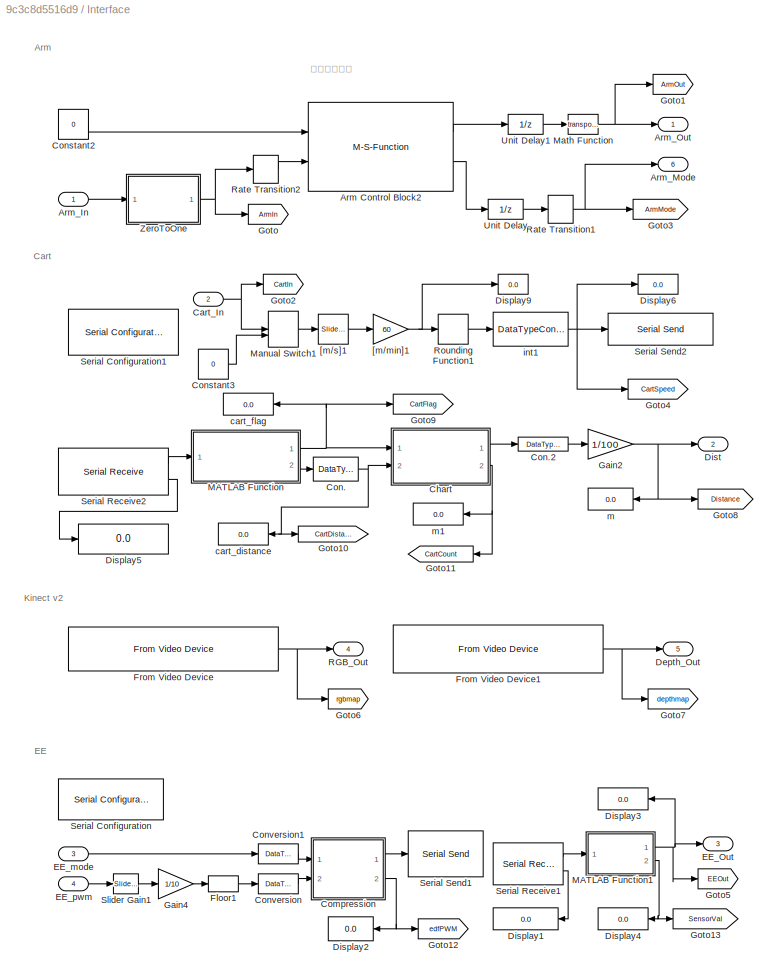
BLOCK [SubSystem] Interface
  Ports = [4, 6]
  RequestExecContextInheritance = off
  Variant = off
BLOCK [M-S-Function] Interface/Arm Control Block2
  FunctionName = armComBlock2
  Parameters = comport, baud, tempPos
  Ports = [2, 2]
BLOCK [Inport] Interface/Arm_In
  IconDisplay = Port number
BLOCK [Outport] Interface/Arm_Mode
  IconDisplay = Port number
  Port = 6
BLOCK [Outport] Interface/Arm_Out
  IconDisplay = Port number
BLOCK [Inport] Interface/Cart_In
  IconDisplay = Port number
  Port = 2
BLOCK [SubSystem] Interface/Chart
  ErrorFcn = Stateflow.Translate.translate
  PermitHierarchicalResolution = ExplicitOnly
  Ports = [2, 2]
  RequestExecContextInheritance = off
  SFBlockType = Chart
  TreatAsAtomicUnit = on
  Variant = off
BLOCK [Demux] Interface/Chart/ Demux 
  Outputs = 1
  Ports = [1, 1]
BLOCK [S-Function] Interface/Chart/ SFunction 
  EnableBusSupport = on
  FunctionName = sf_sfun
  PortCounts = [2 3]
  Ports = [2, 3]
  SFcnIsStateOwnerBlock = off
  SFunctionDeploymentMode = off
  Tag = Stateflow S-Function rail_ver01_0311_Nomotor 3
BLOCK [Terminator] Interface/Chart/ Terminator 
BLOCK [Outport] Interface/Chart/count
  IconDisplay = Port number
  Port = 2
BLOCK [Outport] Interface/Chart/d
  IconDisplay = Port number
BLOCK [Inport] Interface/Chart/distance
  IconDisplay = Port number
  Port = 2
BLOCK [Inport] Interface/Chart/flag
  IconDisplay = Port number
BLOCK [SubSystem] Interface/Compression
  ErrorFcn = Stateflow.Translate.translate
  PermitHierarchicalResolution = ExplicitOnly
  Ports = [2, 2]
  RequestExecContextInheritance = off
  SFBlockType = MATLAB Function
  TreatAsAtomicUnit = on
  Variant = off
BLOCK [Demux] Interface/Compression/ Demux 
  Outputs = 1
  Ports = [1, 1]
BLOCK [S-Function] Interface/Compression/ SFunction 
  EnableBusSupport = on
  FunctionName = sf_sfun
  PortCounts = [2 3]
  Ports = [2, 3]
  SFcnIsStateOwnerBlock = off
  SFunctionDeploymentMode = off
  Tag = Stateflow S-Function rail_ver01_0311_Nomotor 16
BLOCK [Terminator] Interface/Compression/ Terminator 
BLOCK [Outport] Interface/Compression/data
  IconDisplay = Port number
BLOCK [Inport] Interface/Compression/edf
  IconDisplay = Port number
  Port = 2
BLOCK [Inport] Interface/Compression/mode
  IconDisplay = Port number
BLOCK [Outport] Interface/Compression/pwm
  IconDisplay = Port number
  Port = 2
BLOCK [DataTypeConversion] Interface/Con.
  OutDataTypeStr = double
  RndMeth = Floor
  SaturateOnIntegerOverflow = off
BLOCK [DataTypeConversion] Interface/Con.2
  OutDataTypeStr = double
  RndMeth = Floor
  SaturateOnIntegerOverflow = off
BLOCK [Constant] Interface/Constant2
  SampleTime = 0.1
  Value = 0
BLOCK [Constant] Interface/Constant3
  SampleTime = dt
  Value = 0
BLOCK [DataTypeConversion] Interface/Conversion
  OutDataTypeStr = uint8
  RndMeth = Floor
  SaturateOnIntegerOverflow = off
BLOCK [DataTypeConversion] Interface/Conversion1
  OutDataTypeStr = uint8
  RndMeth = Floor
  SaturateOnIntegerOverflow = off
BLOCK [Outport] Interface/Depth_Out
  IconDisplay = Port number
  Port = 5
BLOCK [Display] Interface/Display1
  Decimation = 1
  Format = long
  Ports = [1]
BLOCK [Display] Interface/Display2
  Decimation = 1
  Format = long
  Ports = [1]
BLOCK [Display] Interface/Display3
  Decimation = 1
  Format = long
  Ports = [1]
BLOCK [Display] Interface/Display4
  Decimation = 1
  Format = long
  Ports = [1]
BLOCK [Display] Interface/Display5
  Decimation = 1
  Ports = [1]
BLOCK [Display] Interface/Display6
  Decimation = 1
  Format = long
  Ports = [1]
BLOCK [Display] Interface/Display9
  Decimation = 1
  Format = long
  Ports = [1]
BLOCK [Outport] Interface/Dist
  IconDisplay = Port number
  Port = 2
BLOCK [Outport] Interface/EE_Out
  IconDisplay = Port number
  Port = 3
BLOCK [Inport] Interface/EE_mode
  IconDisplay = Port number
  Port = 3
BLOCK [Inport] Interface/EE_pwm
  IconDisplay = Port number
  Port = 4
BLOCK [Rounding] Interface/Floor1
BLOCK [Reference] Interface/From Video Device  REF=imaqlib/From Video Device
  Ports = [0, 1]
  SourceBlock = imaqlib/From Video Device
  SourceProductBaseCode = IA
  SourceProductName = Image Acquisition Toolbox
  SourceType = From Video Device
  UserDataPersistent = on
BLOCK [Reference] Interface/From Video Device1  REF=imaqlib/From Video Device
  Ports = [0, 1]
  SourceBlock = imaqlib/From Video Device
  SourceProductBaseCode = IA
  SourceProductName = Image Acquisition Toolbox
  SourceType = From Video Device
  UserDataPersistent = on
BLOCK [Gain] Interface/Gain2
  Gain = 1/100
  OutDataTypeStr = Inherit: Inherit via internal rule
  ParamDataTypeStr = Inherit: Inherit via internal rule
  SaturateOnIntegerOverflow = off
BLOCK [Gain] Interface/Gain4
  Gain = 1/10
  OutDataTypeStr = Inherit: Inherit via internal rule
  ParamDataTypeStr = Inherit: Inherit via internal rule
  SaturateOnIntegerOverflow = off
BLOCK [Goto] Interface/Goto
  GotoTag = ArmIn
  TagVisibility = global
BLOCK [Goto] Interface/Goto1
  GotoTag = ArmOut
  TagVisibility = global
BLOCK [Goto] Interface/Goto10
  GotoTag = CartDistance
  TagVisibility = global
BLOCK [Goto] Interface/Goto11
  GotoTag = CartCount
  TagVisibility = global
BLOCK [Goto] Interface/Goto12
  GotoTag = edfPWM
  TagVisibility = global
BLOCK [Goto] Interface/Goto13
  GotoTag = SensorVal
  TagVisibility = global
BLOCK [Goto] Interface/Goto2
  GotoTag = CartIn
  TagVisibility = global
BLOCK [Goto] Interface/Goto3
  GotoTag = ArmMode
  TagVisibility = global
BLOCK [Goto] Interface/Goto4
  GotoTag = CartSpeed
  TagVisibility = global
BLOCK [Goto] Interface/Goto5
  GotoTag = EEOut
  TagVisibility = global
BLOCK [Goto] Interface/Goto6
  GotoTag = rgbmap
  TagVisibility = global
BLOCK [Goto] Interface/Goto7
  GotoTag = depthmap
  TagVisibility = global
BLOCK [Goto] Interface/Goto8
  GotoTag = Distance
  TagVisibility = global
BLOCK [Goto] Interface/Goto9
  GotoTag = CartFlag
  TagVisibility = global
BLOCK [SubSystem] Interface/MATLAB Function
  ErrorFcn = Stateflow.Translate.translate
  PermitHierarchicalResolution = ExplicitOnly
  Ports = [1, 2]
  RequestExecContextInheritance = off
  SFBlockType = MATLAB Function
  TreatAsAtomicUnit = on
  Variant = off
BLOCK [Demux] Interface/MATLAB Function/ Demux 
  Outputs = 1
  Ports = [1, 1]
BLOCK [S-Function] Interface/MATLAB Function/ SFunction 
  EnableBusSupport = on
  FunctionName = sf_sfun
  PortCounts = [1 3]
  Ports = [1, 3]
  SFcnIsStateOwnerBlock = off
  SFunctionDeploymentMode = off
  Tag = Stateflow S-Function rail_ver01_0311_Nomotor 7
BLOCK [Terminator] Interface/MATLAB Function/ Terminator 
BLOCK [Inport] Interface/MATLAB Function/data
  IconDisplay = Port number
BLOCK [Outport] Interface/MATLAB Function/distance
  IconDisplay = Port number
  Port = 2
BLOCK [Outport] Interface/MATLAB Function/flag
  IconDisplay = Port number
BLOCK [SubSystem] Interface/MATLAB Function1
  ErrorFcn = Stateflow.Translate.translate
  PermitHierarchicalResolution = ExplicitOnly
  Ports = [1, 2]
  RequestExecContextInheritance = off
  SFBlockType = MATLAB Function
  TreatAsAtomicUnit = on
  Variant = off
BLOCK [Demux] Interface/MATLAB Function1/ Demux 
  Outputs = 1
  Ports = [1, 1]
BLOCK [S-Function] Interface/MATLAB Function1/ SFunction 
  EnableBusSupport = on
  FunctionName = sf_sfun
  PortCounts = [1 3]
  Ports = [1, 3]
  SFcnIsStateOwnerBlock = off
  SFunctionDeploymentMode = off
  Tag = Stateflow S-Function rail_ver01_0311_Nomotor 18
BLOCK [Terminator] Interface/MATLAB Function1/ Terminator 
BLOCK [Inport] Interface/MATLAB Function1/data
  IconDisplay = Port number
BLOCK [Outport] Interface/MATLAB Function1/flag
  IconDisplay = Port number
BLOCK [Outport] Interface/MATLAB Function1/val
  IconDisplay = Port number
  Port = 2
BLOCK [ManualSwitch] Interface/Manual Switch1
BLOCK [Math] Interface/Math Function
  Operator = transpose
  Ports = [1, 1]
BLOCK [Outport] Interface/RGB_Out
  IconDisplay = Port number
  Port = 4
BLOCK [RateTransition] Interface/Rate Transition1
  OutPortSampleTime = dt
BLOCK [RateTransition] Interface/Rate Transition2
  OutPortSampleTime = dt
BLOCK [Rounding] Interface/Rounding Function1
  Commented = through
  Operator = round
BLOCK [Reference] Interface/Serial Configuration  REF=instrumentlib/Serial Configuration
  Ports = []
  Priority = -200000
  SourceBlock = instrumentlib/Serial Configuration
  SourceProductBaseCode = IC
  SourceProductName = Instrument Control Toolbox
  SourceType = Serial Configuration
BLOCK [Reference] Interface/Serial Configuration1  REF=instrumentlib/Serial Configuration
  Ports = []
  Priority = -200000
  SourceBlock = instrumentlib/Serial Configuration
  SourceProductBaseCode = IC
  SourceProductName = Instrument Control Toolbox
  SourceType = Serial Configuration
BLOCK [Reference] Interface/Serial Receive1  REF=instrumentlib/Serial Receive
  Ports = [0, 2]
  SourceBlock = instrumentlib/Serial Receive
  SourceProductBaseCode = IC
  SourceProductName = Instrument Control Toolbox
  SourceType = Serial Receive
BLOCK [Reference] Interface/Serial Receive2  REF=instrumentlib/Serial Receive
  Ports = [0, 2]
  SourceBlock = instrumentlib/Serial Receive
  SourceProductBaseCode = IC
  SourceProductName = Instrument Control Toolbox
  SourceType = Serial Receive
BLOCK [Reference] Interface/Serial Send1  REF=instrumentlib/Serial Send
  Ports = [1]
  SourceBlock = instrumentlib/Serial Send
  SourceProductBaseCode = IC
  SourceProductName = Instrument Control Toolbox
  SourceType = Serial Send
BLOCK [Reference] Interface/Serial Send2  REF=instrumentlib/Serial Send
  Ports = [1]
  SourceBlock = instrumentlib/Serial Send
  SourceProductBaseCode = IC
  SourceProductName = Instrument Control Toolbox
  SourceType = Serial Send
BLOCK [Reference] Interface/Slider Gain1  REF=simulink/Math
Operations/Slider
Gain
  Ports = [1, 1]
  SourceBlock = simulink/Math\nOperations/Slider\nGain
  SourceProductBaseCode = SL
  SourceProductName = Simulink
  SourceType = Slider Gain
BLOCK [UnitDelay] Interface/Unit Delay
  InputProcessing = Elements as channels (sample based)
  SampleTime = -1
BLOCK [UnitDelay] Interface/Unit Delay1
  InitialCondition = [200 0 400 0 0 0]
  InputProcessing = Elements as channels (sample based)
  SampleTime = -1
BLOCK [SubSystem] Interface/ZeroToOne
  ErrorFcn = Stateflow.Translate.translate
  PermitHierarchicalResolution = ExplicitOnly
  Ports = [1, 1]
  RequestExecContextInheritance = off
  SFBlockType = MATLAB Function
  TreatAsAtomicUnit = on
  Variant = off
BLOCK [Demux] Interface/ZeroToOne/ Demux 
  Outputs = 1
  Ports = [1, 1]
BLOCK [S-Function] Interface/ZeroToOne/ SFunction 
  EnableBusSupport = on
  FunctionName = sf_sfun
  PortCounts = [1 2]
  Ports = [1, 2]
  SFcnIsStateOwnerBlock = off
  SFunctionDeploymentMode = off
  Tag = Stateflow S-Function rail_ver01_0311_Nomotor 14
BLOCK [Terminator] Interface/ZeroToOne/ Terminator 
BLOCK [Inport] Interface/ZeroToOne/u
  IconDisplay = Port number
BLOCK [Outport] Interface/ZeroToOne/y
  IconDisplay = Port number
BLOCK [Gain] Interface/[m//min]1
  Commented = through
  Gain = 60
  OutDataTypeStr = Inherit: Inherit via internal rule
  ParamDataTypeStr = Inherit: Inherit via internal rule
  SaturateOnIntegerOverflow = off
BLOCK [Reference] Interface/[m//s]1  REF=simulink/Math
Operations/Slider
Gain
  Commented = through
  Ports = [1, 1]
  SourceBlock = simulink/Math\nOperations/Slider\nGain
  SourceProductBaseCode = SL
  SourceProductName = Simulink
  SourceType = Slider Gain
BLOCK [Display] Interface/cart_distance
  Decimation = 1
  Format = long
  Ports = [1]
BLOCK [Display] Interface/cart_flag
  Decimation = 1
  Format = long
  Ports = [1]
BLOCK [DataTypeConversion] Interface/int1
  OutDataTypeStr = int8
  RndMeth = Floor
  SaturateOnIntegerOverflow = off
BLOCK [Display] Interface/m
  Decimation = 1
  Format = long
  Ports = [1]
BLOCK [Display] Interface/m1
  Decimation = 1
  Format = long
  Ports = [1]
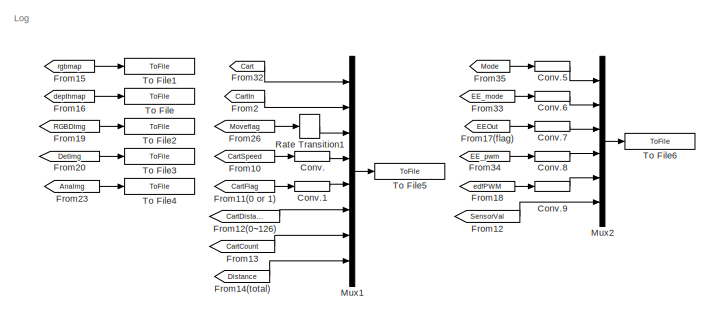
[diagram: Logging Subsystem - part 1/2, left side, full height]
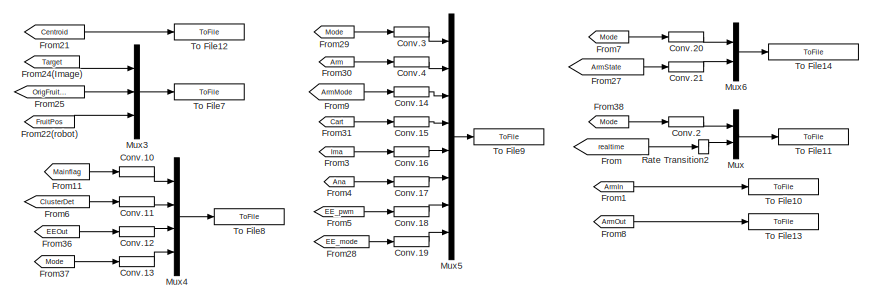
[diagram: Logging Subsystem - part 2/2, right side, full height]
BLOCK [SubSystem] Logging Subsystem
  Commented = on
  Ports = []
  RequestExecContextInheritance = off
  Variant = off
BLOCK [DataTypeConversion] Logging Subsystem/Conv.
  OutDataTypeStr = double
  RndMeth = Floor
  SaturateOnIntegerOverflow = off
BLOCK [DataTypeConversion] Logging Subsystem/Conv.1
  OutDataTypeStr = double
  RndMeth = Floor
  SaturateOnIntegerOverflow = off
BLOCK [DataTypeConversion] Logging Subsystem/Conv.10
  OutDataTypeStr = double
  RndMeth = Floor
  SaturateOnIntegerOverflow = off
BLOCK [DataTypeConversion] Logging Subsystem/Conv.11
  OutDataTypeStr = double
  RndMeth = Floor
  SaturateOnIntegerOverflow = off
BLOCK [DataTypeConversion] Logging Subsystem/Conv.12
  OutDataTypeStr = double
  RndMeth = Floor
  SaturateOnIntegerOverflow = off
BLOCK [DataTypeConversion] Logging Subsystem/Conv.13
  OutDataTypeStr = double
  RndMeth = Floor
  SaturateOnIntegerOverflow = off
BLOCK [DataTypeConversion] Logging Subsystem/Conv.14
  OutDataTypeStr = double
  RndMeth = Floor
  SaturateOnIntegerOverflow = off
BLOCK [DataTypeConversion] Logging Subsystem/Conv.15
  OutDataTypeStr = double
  RndMeth = Floor
  SaturateOnIntegerOverflow = off
BLOCK [DataTypeConversion] Logging Subsystem/Conv.16
  OutDataTypeStr = double
  RndMeth = Floor
  SaturateOnIntegerOverflow = off
BLOCK [DataTypeConversion] Logging Subsystem/Conv.17
  OutDataTypeStr = double
  RndMeth = Floor
  SaturateOnIntegerOverflow = off
BLOCK [DataTypeConversion] Logging Subsystem/Conv.18
  OutDataTypeStr = double
  RndMeth = Floor
  SaturateOnIntegerOverflow = off
BLOCK [DataTypeConversion] Logging Subsystem/Conv.19
  OutDataTypeStr = double
  RndMeth = Floor
  SaturateOnIntegerOverflow = off
BLOCK [DataTypeConversion] Logging Subsystem/Conv.2
  OutDataTypeStr = int32
  RndMeth = Floor
  SaturateOnIntegerOverflow = off
BLOCK [DataTypeConversion] Logging Subsystem/Conv.20
  OutDataTypeStr = double
  RndMeth = Floor
  SaturateOnIntegerOverflow = off
BLOCK [DataTypeConversion] Logging Subsystem/Conv.21
  OutDataTypeStr = double
  RndMeth = Floor
  SaturateOnIntegerOverflow = off
BLOCK [DataTypeConversion] Logging Subsystem/Conv.3
  OutDataTypeStr = double
  RndMeth = Floor
  SaturateOnIntegerOverflow = off
BLOCK [DataTypeConversion] Logging Subsystem/Conv.4
  OutDataTypeStr = double
  RndMeth = Floor
  SaturateOnIntegerOverflow = off
BLOCK [DataTypeConversion] Logging Subsystem/Conv.5
  OutDataTypeStr = double
  RndMeth = Floor
  SaturateOnIntegerOverflow = off
BLOCK [DataTypeConversion] Logging Subsystem/Conv.6
  OutDataTypeStr = double
  RndMeth = Floor
  SaturateOnIntegerOverflow = off
BLOCK [DataTypeConversion] Logging Subsystem/Conv.7
  OutDataTypeStr = double
  RndMeth = Floor
  SaturateOnIntegerOverflow = off
BLOCK [DataTypeConversion] Logging Subsystem/Conv.8
  OutDataTypeStr = double
  RndMeth = Floor
  SaturateOnIntegerOverflow = off
BLOCK [DataTypeConversion] Logging Subsystem/Conv.9
  OutDataTypeStr = double
  RndMeth = Floor
  SaturateOnIntegerOverflow = off
BLOCK [From] Logging Subsystem/From
  GotoTag = realtime
  TagVisibility = global
BLOCK [From] Logging Subsystem/From1
  GotoTag = ArmIn
  TagVisibility = global
BLOCK [From] Logging Subsystem/From10
  GotoTag = CartSpeed
  TagVisibility = global
BLOCK [From] Logging Subsystem/From11
  GotoTag = Mainflag
  TagVisibility = global
BLOCK [From] Logging Subsystem/From11(0 or 1)
  GotoTag = CartFlag
  TagVisibility = global
BLOCK [From] Logging Subsystem/From12
  GotoTag = SensorVal
  TagVisibility = global
BLOCK [From] Logging Subsystem/From12(0~126)
  GotoTag = CartDistance
  TagVisibility = global
BLOCK [From] Logging Subsystem/From13
  GotoTag = CartCount
  TagVisibility = global
BLOCK [From] Logging Subsystem/From14(total)
  GotoTag = Distance
  TagVisibility = global
BLOCK [From] Logging Subsystem/From15
  GotoTag = rgbmap
  TagVisibility = global
BLOCK [From] Logging Subsystem/From16
  GotoTag = depthmap
  TagVisibility = global
BLOCK [From] Logging Subsystem/From17(flag)
  GotoTag = EEOut
  TagVisibility = global
BLOCK [From] Logging Subsystem/From18
  GotoTag = edfPWM
  TagVisibility = global
BLOCK [From] Logging Subsystem/From19
  GotoTag = RGBDImg
  TagVisibility = global
BLOCK [From] Logging Subsystem/From2
  GotoTag = CartIn
  TagVisibility = global
BLOCK [From] Logging Subsystem/From20
  GotoTag = DetImg
  TagVisibility = global
BLOCK [From] Logging Subsystem/From21
  GotoTag = Centroid
  TagVisibility = global
BLOCK [From] Logging Subsystem/From22(robot)
  GotoTag = FruitPos
  TagVisibility = global
BLOCK [From] Logging Subsystem/From23
  GotoTag = AnaImg
  TagVisibility = global
BLOCK [From] Logging Subsystem/From24(Image)
  GotoTag = Target
  TagVisibility = global
BLOCK [From] Logging Subsystem/From25
  GotoTag = OrigFruitPos
  TagVisibility = global
BLOCK [From] Logging Subsystem/From26
  GotoTag = Moveflag
  TagVisibility = global
BLOCK [From] Logging Subsystem/From27
  GotoTag = ArmState
  TagVisibility = global
BLOCK [From] Logging Subsystem/From28
  GotoTag = EE_mode
  TagVisibility = global
BLOCK [From] Logging Subsystem/From29
  GotoTag = Mode
  TagVisibility = global
BLOCK [From] Logging Subsystem/From3
  GotoTag = Ima
  TagVisibility = global
BLOCK [From] Logging Subsystem/From30
  GotoTag = Arm
  TagVisibility = global
BLOCK [From] Logging Subsystem/From31
  GotoTag = Cart
  TagVisibility = global
BLOCK [From] Logging Subsystem/From32
  GotoTag = Cart
  TagVisibility = global
BLOCK [From] Logging Subsystem/From33
  GotoTag = EE_mode
  TagVisibility = global
BLOCK [From] Logging Subsystem/From34
  GotoTag = EE_pwm
  TagVisibility = global
BLOCK [From] Logging Subsystem/From35
  GotoTag = Mode
  TagVisibility = global
BLOCK [From] Logging Subsystem/From36
  GotoTag = EEOut
  TagVisibility = global
BLOCK [From] Logging Subsystem/From37
  GotoTag = Mode
  TagVisibility = global
BLOCK [From] Logging Subsystem/From38
  GotoTag = Mode
  TagVisibility = global
BLOCK [From] Logging Subsystem/From4
  GotoTag = Ana
  TagVisibility = global
BLOCK [From] Logging Subsystem/From5
  GotoTag = EE_pwm
  TagVisibility = global
BLOCK [From] Logging Subsystem/From6
  GotoTag = ClusterDet
  TagVisibility = global
BLOCK [From] Logging Subsystem/From7
  GotoTag = Mode
  TagVisibility = global
BLOCK [From] Logging Subsystem/From8
  GotoTag = ArmOut
  TagVisibility = global
BLOCK [From] Logging Subsystem/From9
  GotoTag = ArmMode
  TagVisibility = global
BLOCK [Mux] Logging Subsystem/Mux
  DisplayOption = bar
  Inputs = 2
  Ports = [2, 1]
BLOCK [Mux] Logging Subsystem/Mux1
  DisplayOption = bar
  Inputs = 8
  Ports = [8, 1]
BLOCK [Mux] Logging Subsystem/Mux2
  DisplayOption = bar
  Inputs = 6
  Ports = [6, 1]
BLOCK [Mux] Logging Subsystem/Mux3
  DisplayOption = bar
  Inputs = 3
  Ports = [3, 1]
BLOCK [Mux] Logging Subsystem/Mux4
  DisplayOption = bar
  Ports = [4, 1]
BLOCK [Mux] Logging Subsystem/Mux5
  DisplayOption = bar
  Inputs = 8
  Ports = [8, 1]
BLOCK [Mux] Logging Subsystem/Mux6
  DisplayOption = bar
  Inputs = 2
  Ports = [2, 1]
BLOCK [RateTransition] Logging Subsystem/Rate Transition1
  OutPortSampleTime = dt
BLOCK [RateTransition] Logging Subsystem/Rate Transition2
  OutPortSampleTime = dt
BLOCK [ToFile] Logging Subsystem/To File
  Filename = depthmap.mat
  MatrixName = depthmap
  Ports = [1]
  SaveFormat = Timeseries
BLOCK [ToFile] Logging Subsystem/To File1
  Filename = rgbmap.mat
  MatrixName = rgbmap
  Ports = [1]
  SaveFormat = Timeseries
BLOCK [ToFile] Logging Subsystem/To File10
  Filename = ArmInLog.mat
  MatrixName = ArmInLog
  Ports = [1]
  SaveFormat = Timeseries
BLOCK [ToFile] Logging Subsystem/To File11
  Filename = realLog.mat
  MatrixName = realLog
  Ports = [1]
  SaveFormat = Timeseries
BLOCK [ToFile] Logging Subsystem/To File12
  Filename = CentroidLog.mat
  MatrixName = CentroidLog
  Ports = [1]
  SaveFormat = Timeseries
BLOCK [ToFile] Logging Subsystem/To File13
  Filename = ArmOutLog.mat
  MatrixName = ArmOutLog
  Ports = [1]
  SaveFormat = Timeseries
BLOCK [ToFile] Logging Subsystem/To File14
  Filename = ArmStateLog.mat
  MatrixName = ArmStateLog
  Ports = [1]
  SaveFormat = Timeseries
BLOCK [ToFile] Logging Subsystem/To File2
  Filename = RGBDImg.mat
  MatrixName = RGBDImg
  Ports = [1]
  SaveFormat = Timeseries
BLOCK [ToFile] Logging Subsystem/To File3
  Filename = DetImg.mat
  MatrixName = DetImg
  Ports = [1]
  SaveFormat = Timeseries
BLOCK [ToFile] Logging Subsystem/To File4
  Filename = AnaImg.mat
  MatrixName = AnaImg
  Ports = [1]
  SaveFormat = Timeseries
BLOCK [ToFile] Logging Subsystem/To File5
  Filename = CartLog.mat
  MatrixName = CartLog
  Ports = [1]
  SaveFormat = Timeseries
BLOCK [ToFile] Logging Subsystem/To File6
  Filename = EELog.mat
  MatrixName = EELog
  Ports = [1]
  SaveFormat = Timeseries
BLOCK [ToFile] Logging Subsystem/To File7
  Filename = TargetLog.mat
  MatrixName = TargetLog
  Ports = [1]
  SaveFormat = Timeseries
BLOCK [ToFile] Logging Subsystem/To File8
  Filename = MainflagLog.mat
  MatrixName = MainflagLog
  Ports = [1]
  SaveFormat = Timeseries
BLOCK [ToFile] Logging Subsystem/To File9
  Filename = ModeLog.mat
  MatrixName = ModeLog
  Ports = [1]
  SaveFormat = Timeseries
BLOCK [Reference] Real-Time Synchronization  REF=sldrtlib/Real-Time
Synchronization
  Ports = [0, 1]
  SourceBlock = sldrtlib/Real-Time\nSynchronization
  SourceProductBaseCode = WT
  SourceProductName = Simulink Desktop Real-Time
  SourceType = Simulink Desktop Real-Time Synchronization
ANNOTATION Application: Analysys(limit_range_ANA, value, erosion, range_mm, translationVector, armInitPos, relationofArmCam) パラメータ：7
ANNOTATION Application: Arm(velocity, acceleration, armInitPos, correct, pitchAdd) パラメータ：5
ANNOTATION Application: Cart(termDistance, first)
ANNOTATION Application: EE
ANNOTATION Application: Image(range_m, limit_range_IMG, value, erosion) パラメータ：4
ANNOTATION Application/Analysys Subsystem: erosion
ANNOTATION Application/Analysys Subsystem: Depth_fliplr
ANNOTATION Application/Image Subsystem: erosion
ANNOTATION Application/Image Subsystem: Depth_fliplr
ANNOTATION Interface: 絶対座標表示
ANNOTATION Interface: Arm
ANNOTATION Interface: Cart
ANNOTATION Interface: EE
ANNOTATION Interface: Kinect v2
ANNOTATION Logging Subsystem: Log
LINE Application/Analysys Subsystem/1:right, other:left:1 -> Application/Analysys Subsystem/Slider Gain1:1
LINE Application/Analysys Subsystem/Data Type Conversion1:1 -> Application/Analysys Subsystem/Draw Markers2:2
LINE Application/Analysys Subsystem/Depth:1 -> Application/Analysys Subsystem/MATLAB Function1 収穫対象果実の検出:3
NET Application/Analysys Subsystem/Draw Markers2:1 -> Application/Analysys Subsystem/AnaImg:1, Application/Analysys Subsystem/Viewer_ANA_Fruitdet:1
NET Application/Analysys Subsystem/Erosion:1 -> Application/Analysys Subsystem/MATLAB Function1 収穫対象果実の検出:1, Application/Analysys Subsystem/Viewer_ANA_BW:1
NET Application/Analysys Subsystem/MATLAB Function1 収穫対象果実の検出:1 -> Application/Analysys Subsystem/Data Type Conversion1:1, Application/Analysys Subsystem/Dispay_targetPos:1, Application/Analysys Subsystem/MATLAB Function2 3次元位置検出:1, Application/Analysys Subsystem/Mux:1
NET Application/Analysys Subsystem/MATLAB Function1 収穫対象果実の検出:2 -> Application/Analysys Subsystem/Dispay_targeDepth:1, Application/Analysys Subsystem/MATLAB Function2 3次元位置検出:2, Application/Analysys Subsystem/Mux:2
NET Application/Analysys Subsystem/MATLAB Function2 3次元位置検出:1 -> Application/Analysys Subsystem/MATLAB Function3 直線距離算出:1, Application/Analysys Subsystem/OrigFruitPos:1, Application/Analysys Subsystem/[x, y, z](from Cam to Fruit):1
NET Application/Analysys Subsystem/MATLAB Function3 直線距離算出:1 -> Application/Analysys Subsystem/FruitPos:1, Application/Analysys Subsystem/[x, y, z](from Arm to Fruit):1
NET Application/Analysys Subsystem/Mux:1 -> Application/Analysys Subsystem/Dispay_targeDepth1:1, Application/Analysys Subsystem/Target:1
NET Application/Analysys Subsystem/RGBD:1 -> Application/Analysys Subsystem/Viewer_Ana:1, Application/Analysys Subsystem/limit area 着目領域の限定:1
LINE Application/Analysys Subsystem/RGBtoHAV and Binarization HSV変換と2値化:1 -> Application/Analysys Subsystem/Erosion:1
LINE Application/Analysys Subsystem/Slider Gain1:1 -> Application/Analysys Subsystem/limit area 着目領域の限定:3
NET Application/Analysys Subsystem/armInitPos:1 -> Application/Analysys Subsystem/MATLAB Function2 3次元位置検出:4, Application/Analysys Subsystem/MATLAB Function3 直線距離算出:3
LINE Application/Analysys Subsystem/dummyDepth:1 -> Application/Analysys Subsystem/MATLAB Function1 収穫対象果実の検出:4
NET Application/Analysys Subsystem/limit area 着目領域の限定:1 -> Application/Analysys Subsystem/Draw Markers2:1, Application/Analysys Subsystem/RGBtoHAV and Binarization HSV変換と2値化:1, Application/Analysys Subsystem/Viewer_ANA_Limit:1
LINE Application/Analysys Subsystem/limit_range:1 -> Application/Analysys Subsystem/limit area 着目領域の限定:2
LINE Application/Analysys Subsystem/range_mm:1 -> Application/Analysys Subsystem/MATLAB Function1 収穫対象果実の検出:2
LINE Application/Analysys Subsystem/relationofArmCam:1 -> Application/Analysys Subsystem/MATLAB Function3 直線距離算出:2
LINE Application/Analysys Subsystem/translationVector:1 -> Application/Analysys Subsystem/MATLAB Function2 3次元位置検出:3
LINE Application/Analysys Subsystem/value:1 -> Application/Analysys Subsystem/RGBtoHAV and Binarization HSV変換と2値化:2
LINE Application/Analysys Subsystem:1 -> Application/Go_FruitPos:1
LINE Application/Analysys Subsystem:2 -> Application/Go_AnaImg:1
LINE Application/Analysys Subsystem:3 -> Application/Go_Target:1
LINE Application/Analysys Subsystem:4 -> Application/Go_OrigFruitPos:1
LINE Application/Arm Subsystem/Arm_Out:1 -> Application/Arm Subsystem/Chart:2
NET Application/Arm Subsystem/Chart:1 -> Application/Arm Subsystem/Arm_In:1, Application/Arm Subsystem/Display1:1
NET Application/Arm Subsystem/Chart:2 -> Application/Arm Subsystem/ArmMode:1, Application/Arm Subsystem/Display3:1
LINE Application/Arm Subsystem/FruitPos:1 -> Application/Arm Subsystem/Chart:3
LINE Application/Arm Subsystem/Mode:1 -> Application/Arm Subsystem/Chart:1
LINE Application/Arm Subsystem/Moveflag:1 -> Application/Arm Subsystem/Chart:4
LINE Application/Arm Subsystem:1 -> Application/Arm_In:1
LINE Application/Arm Subsystem:2 -> Application/Go_ArmMode:1
LINE Application/Arm_Mode:1 -> Application/State Flow:2
LINE Application/Arm_Out:1 -> Application/Arm Subsystem:2
NET Application/Char t2:1 -> Application/Cart_in:1, Application/Display2:1
LINE Application/Char t2:2 -> Application/Rate Transition1:1
LINE Application/Chart:1 -> Application/Rate Transition3:1
LINE Application/Depth_Out:1 -> Application/Image Subsystem:2
LINE Application/Dist:1 -> Application/Char t2:2
LINE Application/EE_Out:1 -> Application/flag Proc:2
LINE Application/From12:1 -> Application/Arm Subsystem:1
LINE Application/From13:1 -> Application/Arm Subsystem:3
LINE Application/From14:1 -> Application/Arm Subsystem:4
LINE Application/From1:1 -> Application/Analysys Subsystem:2
NET Application/From2:1 -> Application/Display1:1, Application/flag Proc:1
LINE Application/From3:1 -> Application/State Flow:3
LINE Application/From:1 -> Application/Analysys Subsystem:1
LINE Application/From_Ana:1 -> Application/Analysys Subsystem:enable
LINE Application/From_Arm:1 -> Application/Arm Subsystem:enable
LINE Application/From_Cart:1 -> Application/Char t2:1
LINE Application/From_Ima:1 -> Application/Image Subsystem:enable
LINE Application/From_Mode1:1 -> Application/Chart:1
LINE Application/Image Subsystem/1:right, other:left:1 -> Application/Image Subsystem/Slider Gain1:1
LINE Application/Image Subsystem/Blob Analysis 重心検出:1 -> Application/Image Subsystem/Data Type Conversion:1
LINE Application/Image Subsystem/Blob Analysis 重心検出:2 -> Application/Image Subsystem/ClusterDet:1
LINE Application/Image Subsystem/Constant:1 -> Application/Image Subsystem/RGBtoHAV and Binarization HSV変換と2値化:2
NET Application/Image Subsystem/Data Type Conversion:1 -> Application/Image Subsystem/Centroid:1, Application/Image Subsystem/Draw Markers1:2, Application/Image Subsystem/Draw Markers2:2
NET Application/Image Subsystem/Depth:1 -> Application/Image Subsystem/DepthImg:1, Application/Image Subsystem/MATLAB Function RGB画像+Depth画像:2
NET Application/Image Subsystem/Draw Markers1:1 -> Application/Image Subsystem/DetImg:1, Application/Image Subsystem/Viewer_det:1
LINE Application/Image Subsystem/Draw Markers2:1 -> Application/Image Subsystem/Viewer_BW_IMG1:1
NET Application/Image Subsystem/Erosion:1 -> Application/Image Subsystem/Blob Analysis 重心検出:1, Application/Image Subsystem/Draw Markers2:1, Application/Image Subsystem/Viewer_IMG_BW:1
NET Application/Image Subsystem/MATLAB Function RGB画像+Depth画像:1 -> Application/Image Subsystem/Draw Markers1:1, Application/Image Subsystem/RGBDImg:1, Application/Image Subsystem/Viewer_RGBD:1, Application/Image Subsystem/limit area 着目領域の限定:1
LINE Application/Image Subsystem/RGB:1 -> Application/Image Subsystem/MATLAB Function RGB画像+Depth画像:1
LINE Application/Image Subsystem/RGBtoHAV and Binarization HSV変換と2値化:1 -> Application/Image Subsystem/Erosion:1
LINE Application/Image Subsystem/Slider Gain1:1 -> Application/Image Subsystem/limit area 着目領域の限定:3
NET Application/Image Subsystem/limit area 着目領域の限定:1 -> Application/Image Subsystem/RGBtoHAV and Binarization HSV変換と2値化:1, Application/Image Subsystem/Viewer_IMG_Limit:1
LINE Application/Image Subsystem/limit_range:1 -> Application/Image Subsystem/limit area 着目領域の限定:2
LINE Application/Image Subsystem/range(m):1 -> Application/Image Subsystem/MATLAB Function RGB画像+Depth画像:3
LINE Application/Image Subsystem:1 -> Application/Go_ClusterDet:1
LINE Application/Image Subsystem:2 -> Application/Go_RGBDImg:1
LINE Application/Image Subsystem:3 -> Application/Go_DepthImg:1
LINE Application/Image Subsystem:4 -> Application/Go_DetImg:1
LINE Application/Image Subsystem:5 -> Application/Go_Centroid:1
NET Application/Manual Switch:1 -> Application/Display6:1, Application/Go_flag:1, Application/State Flow:1
LINE Application/Mode Proc1:1 -> Application/Unit Delay:1
LINE Application/Mode Proc1:2 -> Application/Unit Delay4:1
LINE Application/Mode Proc1:3 -> Application/Unit Delay5:1
LINE Application/Mode Proc1:4 -> Application/Unit Delay1:1
LINE Application/Mode Proc1:5 -> Application/Unit Delay6:1
LINE Application/RGB_Out:1 -> Application/Image Subsystem:1
LINE Application/Rate Transition1:1 -> Application/Go_Mode1:1
NET Application/Rate Transition2:1 -> Application/EE_pwm:1, Application/Go_EE1:1
NET Application/Rate Transition3:1 -> Application/EE_mode:1, Application/Go_EE2:1
NET Application/State Flow:1 -> Application/Mode Proc1:1, Application/Unit Delay2:1
LINE Application/Unit Delay1:1 -> Application/Go_Ana:1
LINE Application/Unit Delay2:1 -> Application/Go_Mode:1
LINE Application/Unit Delay4:1 -> Application/Go_Cart:1
LINE Application/Unit Delay5:1 -> Application/Go_Ima:1
LINE Application/Unit Delay6:1 -> Application/Rate Transition2:1
LINE Application/Unit Delay:1 -> Application/Go_Arm:1
LINE Application/first1:1 -> Application/Char t2:5
LINE Application/first:1 -> Application/Char t2:4
LINE Application/flag Proc:1 -> Application/Manual Switch:2
LINE Application/termDistance:1 -> Application/Char t2:3
LINE Application/待機フラグ:1 -> Application/Manual Switch:1
LINE Application:1 -> Interface:1
LINE Application:2 -> Interface:2
LINE Application:3 -> Interface:3
LINE Application:4 -> Interface:4
LINE Interface/Arm Control Block2:1 -> Interface/Unit Delay1:1
LINE Interface/Arm Control Block2:2 -> Interface/Unit Delay:1
LINE Interface/Arm_In:1 -> Interface/ZeroToOne:1
NET Interface/Cart_In:1 -> Interface/Goto2:1, Interface/Manual Switch1:1
LINE Interface/Chart:1 -> Interface/Con.2:1
NET Interface/Chart:2 -> Interface/Goto11:1, Interface/m1:1
LINE Interface/Compression:1 -> Interface/Serial Send1:1
NET Interface/Compression:2 -> Interface/Display2:1, Interface/Goto12:1
LINE Interface/Con.2:1 -> Interface/Gain2:1
NET Interface/Con.:1 -> Interface/Chart:2, Interface/Goto10:1, Interface/cart_distance:1
LINE Interface/Constant2:1 -> Interface/Arm Control Block2:1
LINE Interface/Constant3:1 -> Interface/Manual Switch1:2
LINE Interface/Conversion1:1 -> Interface/Compression:1
LINE Interface/Conversion:1 -> Interface/Compression:2
LINE Interface/EE_mode:1 -> Interface/Conversion1:1
LINE Interface/EE_pwm:1 -> Interface/Slider Gain1:1
LINE Interface/Floor1:1 -> Interface/Conversion:1
NET Interface/From Video Device1:1 -> Interface/Depth_Out:1, Interface/Goto7:1
NET Interface/From Video Device:1 -> Interface/Goto6:1, Interface/RGB_Out:1
NET Interface/Gain2:1 -> Interface/Dist:1, Interface/Goto8:1, Interface/m:1
LINE Interface/Gain4:1 -> Interface/Floor1:1
NET Interface/MATLAB Function1:1 -> Interface/Display3:1, Interface/EE_Out:1, Interface/Goto5:1
NET Interface/MATLAB Function1:2 -> Interface/Display4:1, Interface/Goto13:1
NET Interface/MATLAB Function:1 -> Interface/Chart:1, Interface/Goto9:1, Interface/cart_flag:1
LINE Interface/MATLAB Function:2 -> Interface/Con.:1
LINE Interface/Manual Switch1:1 -> Interface/[m//s]1:1
NET Interface/Math Function:1 -> Interface/Arm_Out:1, Interface/Goto1:1
NET Interface/Rate Transition1:1 -> Interface/Arm_Mode:1, Interface/Goto3:1
LINE Interface/Rate Transition2:1 -> Interface/Arm Control Block2:2
LINE Interface/Rounding Function1:1 -> Interface/int1:1
LINE Interface/Serial Receive1:1 -> Interface/MATLAB Function1:1
LINE Interface/Serial Receive1:2 -> Interface/Display1:1
LINE Interface/Serial Receive2:1 -> Interface/MATLAB Function:1
LINE Interface/Serial Receive2:2 -> Interface/Display5:1
LINE Interface/Slider Gain1:1 -> Interface/Gain4:1
LINE Interface/Unit Delay1:1 -> Interface/Math Function:1
LINE Interface/Unit Delay:1 -> Interface/Rate Transition1:1
NET Interface/ZeroToOne:1 -> Interface/Goto:1, Interface/Rate Transition2:1
NET Interface/[m//min]1:1 -> Interface/Display9:1, Interface/Rounding Function1:1
LINE Interface/[m//s]1:1 -> Interface/[m//min]1:1
NET Interface/int1:1 -> Interface/Display6:1, Interface/Goto4:1, Interface/Serial Send2:1
LINE Interface:1 -> Application:1
LINE Interface:2 -> Application:2
LINE Interface:3 -> Application:3
LINE Interface:4 -> Application:4
LINE Interface:5 -> Application:5
LINE Interface:6 -> Application:6
LINE Logging Subsystem/Conv.10:1 -> Logging Subsystem/Mux4:1
LINE Logging Subsystem/Conv.11:1 -> Logging Subsystem/Mux4:2
LINE Logging Subsystem/Conv.12:1 -> Logging Subsystem/Mux4:3
LINE Logging Subsystem/Conv.13:1 -> Logging Subsystem/Mux4:4
LINE Logging Subsystem/Conv.14:1 -> Logging Subsystem/Mux5:3
LINE Logging Subsystem/Conv.15:1 -> Logging Subsystem/Mux5:4
LINE Logging Subsystem/Conv.16:1 -> Logging Subsystem/Mux5:5
LINE Logging Subsystem/Conv.17:1 -> Logging Subsystem/Mux5:6
LINE Logging Subsystem/Conv.18:1 -> Logging Subsystem/Mux5:7
LINE Logging Subsystem/Conv.19:1 -> Logging Subsystem/Mux5:8
LINE Logging Subsystem/Conv.1:1 -> Logging Subsystem/Mux1:5
LINE Logging Subsystem/Conv.20:1 -> Logging Subsystem/Mux6:1
LINE Logging Subsystem/Conv.21:1 -> Logging Subsystem/Mux6:2
LINE Logging Subsystem/Conv.2:1 -> Logging Subsystem/Mux:1
LINE Logging Subsystem/Conv.3:1 -> Logging Subsystem/Mux5:1
LINE Logging Subsystem/Conv.4:1 -> Logging Subsystem/Mux5:2
LINE Logging Subsystem/Conv.5:1 -> Logging Subsystem/Mux2:1
LINE Logging Subsystem/Conv.6:1 -> Logging Subsystem/Mux2:2
LINE Logging Subsystem/Conv.7:1 -> Logging Subsystem/Mux2:3
LINE Logging Subsystem/Conv.8:1 -> Logging Subsystem/Mux2:4
LINE Logging Subsystem/Conv.9:1 -> Logging Subsystem/Mux2:5
LINE Logging Subsystem/Conv.:1 -> Logging Subsystem/Mux1:4
LINE Logging Subsystem/From10:1 -> Logging Subsystem/Conv.:1
LINE Logging Subsystem/From11(0 or 1):1 -> Logging Subsystem/Conv.1:1
LINE Logging Subsystem/From11:1 -> Logging Subsystem/Conv.10:1
LINE Logging Subsystem/From12(0~126):1 -> Logging Subsystem/Mux1:6
LINE Logging Subsystem/From12:1 -> Logging Subsystem/Mux2:6
LINE Logging Subsystem/From13:1 -> Logging Subsystem/Mux1:7
LINE Logging Subsystem/From14(total):1 -> Logging Subsystem/Mux1:8
LINE Logging Subsystem/From15:1 -> Logging Subsystem/To File1:1
LINE Logging Subsystem/From16:1 -> Logging Subsystem/To File:1
LINE Logging Subsystem/From17(flag):1 -> Logging Subsystem/Conv.7:1
LINE Logging Subsystem/From18:1 -> Logging Subsystem/Conv.9:1
LINE Logging Subsystem/From19:1 -> Logging Subsystem/To File2:1
LINE Logging Subsystem/From1:1 -> Logging Subsystem/To File10:1
LINE Logging Subsystem/From20:1 -> Logging Subsystem/To File3:1
LINE Logging Subsystem/From21:1 -> Logging Subsystem/To File12:1
LINE Logging Subsystem/From22(robot):1 -> Logging Subsystem/Mux3:3
LINE Logging Subsystem/From23:1 -> Logging Subsystem/To File4:1
LINE Logging Subsystem/From24(Image):1 -> Logging Subsystem/Mux3:1
LINE Logging Subsystem/From25:1 -> Logging Subsystem/Mux3:2
LINE Logging Subsystem/From26:1 -> Logging Subsystem/Rate Transition1:1
LINE Logging Subsystem/From27:1 -> Logging Subsystem/Conv.21:1
LINE Logging Subsystem/From28:1 -> Logging Subsystem/Conv.19:1
LINE Logging Subsystem/From29:1 -> Logging Subsystem/Conv.3:1
LINE Logging Subsystem/From2:1 -> Logging Subsystem/Mux1:2
LINE Logging Subsystem/From30:1 -> Logging Subsystem/Conv.4:1
LINE Logging Subsystem/From31:1 -> Logging Subsystem/Conv.15:1
LINE Logging Subsystem/From32:1 -> Logging Subsystem/Mux1:1
LINE Logging Subsystem/From33:1 -> Logging Subsystem/Conv.6:1
LINE Logging Subsystem/From34:1 -> Logging Subsystem/Conv.8:1
LINE Logging Subsystem/From35:1 -> Logging Subsystem/Conv.5:1
LINE Logging Subsystem/From36:1 -> Logging Subsystem/Conv.12:1
LINE Logging Subsystem/From37:1 -> Logging Subsystem/Conv.13:1
LINE Logging Subsystem/From38:1 -> Logging Subsystem/Conv.2:1
LINE Logging Subsystem/From3:1 -> Logging Subsystem/Conv.16:1
LINE Logging Subsystem/From4:1 -> Logging Subsystem/Conv.17:1
LINE Logging Subsystem/From5:1 -> Logging Subsystem/Conv.18:1
LINE Logging Subsystem/From6:1 -> Logging Subsystem/Conv.11:1
LINE Logging Subsystem/From7:1 -> Logging Subsystem/Conv.20:1
LINE Logging Subsystem/From8:1 -> Logging Subsystem/To File13:1
LINE Logging Subsystem/From9:1 -> Logging Subsystem/Conv.14:1
LINE Logging Subsystem/From:1 -> Logging Subsystem/Rate Transition2:1
LINE Logging Subsystem/Mux1:1 -> Logging Subsystem/To File5:1
LINE Logging Subsystem/Mux2:1 -> Logging Subsystem/To File6:1
LINE Logging Subsystem/Mux3:1 -> Logging Subsystem/To File7:1
LINE Logging Subsystem/Mux4:1 -> Logging Subsystem/To File8:1
LINE Logging Subsystem/Mux5:1 -> Logging Subsystem/To File9:1
LINE Logging Subsystem/Mux6:1 -> Logging Subsystem/To File14:1
LINE Logging Subsystem/Mux:1 -> Logging Subsystem/To File11:1
LINE Logging Subsystem/Rate Transition1:1 -> Logging Subsystem/Mux1:3
LINE Logging Subsystem/Rate Transition2:1 -> Logging Subsystem/Mux:2
NET Real-Time Synchronization:1 -> Display1:1, Go_Mode1:1
note: NET lines group one-source signal fan-out (src -> all destinations, sorted); 1:1 wires keep LINE
CHART Application/State Flow states=27 transitions=35
  STATE_LABEL 'CheckRealtime/\nentry:Mode=-100;\n'
  STATE_LABEL 'Mode40/\nentry:Mode=40;\n% 収穫モード'
  STATE_LABEL 'Mode41/\nentry:Mode=41;\n% Arm(yz)移動_Arm'
  STATE_LABEL 'Mode42/\nentry:Mode=42;\n% Arm(x)移動・吸引_Arm, EE'
  STATE_LABEL 'wait40/\nentry:Mode=-40;'
  STATE_LABEL 'Mode43/\nentry:Mode=43;\n% 切断1(閉)_EE'
  STATE_LABEL 'Mode47/\nentry:\nMode=47;\nfailed=0;\n% 収穫失敗\n% 吸引なし'
  STATE_LABEL 'Mode46/\nentry:\nMode=46;\nfailed = 1;\n% Arm(xyz)移動\n%吸引_Arm, EE'
  STATE_LABEL 'Mode44/\nentry:Mode=44;\n% 切断2(開)_EE'
  STATE_LABEL 'Mode45/\nentry:Mode=45;\n% 把持_EE'
  STATE_LABEL 'after(1,sec)\n[Arm_Mode == 1]'
  STATE_LABEL 'after(1,sec)\n[Arm_Mode == 1]'
  STATE_LABEL 'after(1,sec)\n[Arm_Mode == 1]'
  STATE_LABEL '[Arm_Mode == 1 && flag == 43]\n% flag==43 : 光センサ反応'
  STATE_LABEL 'after(3.5,sec)\n[failed == 1]'
  STATE_LABEL 'after(3.5,sec)'
  STATE_LABEL '% 上SW反応\nafter(2,sec)\n%[flag == 44 || after(20,sec)]'
  STATE_LABEL '% 把持失敗\nafter(2,sec)\n[flag == 46] '
  STATE_LABEL '% 下SW反応\n[after(2,sec)]'
  STATE_LABEL 'Mode41/\nentry:Mode=41;\n% Arm(yz)移動_Arm'
  STATE_LABEL 'Mode42/\nentry:Mode=42;\n% Arm(x)移動・吸引_Arm, EE'
  STATE_LABEL 'wait40/\nentry:Mode=-40;'
  STATE_LABEL 'Mode43/\nentry:Mode=43;\n% 切断1(閉)_EE'
  STATE_LABEL 'Mode47/\nentry:\nMode=47;\nfailed=0;\n% 収穫失敗\n% 吸引なし'
  STATE_LABEL 'Mode46/\nentry:\nMode=46;\nfailed = 1;\n% Arm(xyz)移動\n%吸引_Arm, EE'
  STATE_LABEL 'Mode44/\nentry:Mode=44;\n% 切断2(開)_EE'
  STATE_LABEL 'Mode45/\nentry:Mode=45;\n% 把持_EE'
  STATE_LABEL 'Mode10/\nentry:Mode=10;\n% 動作準備モード'
  STATE_LABEL 'Mode10/\nentry:Mode=11;\n% Armキャリブレーション_Arm'
  STATE_LABEL 'Mode12/\nentry:Mode=12;\n% 待機'
  STATE_LABEL '[Arm_Mode == 1]'
  STATE_LABEL '[flag == 12]'
  STATE_LABEL 'Mode10/\nentry:Mode=11;\n% Armキャリブレーション_Arm'
  STATE_LABEL 'Mode12/\nentry:Mode=12;\n% 待機'
  STATE_LABEL 'Mode20/\nentry:Mode=20;\n% 探索モード'
  STATE_LABEL 'Mode21/\nentry:Mode=21;\n% 微小移動_Cart'
  STATE_LABEL 'Mode22/\nentry:Mode=22;\n% トマト探索_Cart, Img'
  STATE_LABEL 'after(0.5,sec)'
  STATE_LABEL 'Mode21/\nentry:Mode=21;\n% 微小移動_Cart'
  STATE_LABEL 'Mode22/\nentry:Mode=22;\n% トマト探索_Cart, Img'
CHART Application/Arm Subsystem/Chart/arm/MATLAB Function_xz states=1 transitions=1
  STATE_LABEL 'eML_blk_kernel()'
  STATE_LABEL 'SCRIPT:\nfunction AmoutOfMove = fcn(FruitPos, armInitPos, correct, Moveflag, flag)\nAmoutOfMove=[0, 0, 0];\n% [x, y, z](ロボット座標)\n\nif FruitPos(1) == 0 && FruitPos(2) == 0 && FruitPos(3) == 0\n    AmoutOfMove(1) = armInitPos(1);\n    AmoutOfMove(2) = armInitPos(2);\n    AmoutOfMove(3) = armInitPos(3);\nelse\n    % Moveflag == 1 : 右方向\n    if Moveflag == 1\n        % x\n        AmoutOfMove(1) = FruitPos(1) + cor...<+695ch>'
CHART Interface/Chart states=2 transitions=3
  STATE_LABEL 'mode0/'
  STATE_LABEL 'mode1/\nentry:\ncount = count;\nd = (count * 127) + distance;\nduring:\nd = distance + count * 127;\ncount = count;'
CHART Application/Analysys Subsystem/MATLAB Function1
収穫対象果実の検出 states=1 transitions=1
  STATE_LABEL 'eML_blk_kernel()'
  STATE_LABEL 'SCRIPT:\nfunction [targetPos,targetDepth] = fcn(BW,range, depth, dummyDepth)\ntargetPos = [0, 0];\ndepth = fliplr(depth);\ntargetDepth = 0;\n% %% 非ゼロ検出\n[row,col] = find(BW);\n s=size(row);\n n=s(1);\n if n ~= 0\n    position=zeros(n,3);\n    for i=1:n\n        position(i,1)=col(i);\n        position(i,2)=row(i);\n        position(i,3)=depth(row(i), col(i));\n    end\n%%\n    [row2,col2, v] = find(position(:,3));\n...<+623ch>'
CHART Application/Mode Proc1 states=1 transitions=1
  STATE_LABEL 'eML_blk_kernel()'
  STATE_LABEL 'SCRIPT:\nfunction [Arm, Cart, Img, Ana, EE_pwm] = fcn(Mode)\n\nArm = 0;\nCart = 0;\nImg = 0;\nAna = 0;\nEE_pwm = 0;\n\n% Cart\nif Mode==21\n    % 微小移動_Cart\n    Cart = 1;\n    \n% Cart, Img\nelseif Mode==22\n    % トマト探索_Cart, Img\n    Cart = 1;\n    Img = 1;\n\n% Ana\nelseif Mode==30 || Mode==31\n    % 解析モード\n    % 目標トマト果実位置の検出_Ana\n    Ana = 1;\n% Arm\nelseif Mode==41 || Mode == 61 || Mode == 62\n    %Mode == 41 Arm(yz)移動_...<+710ch>'
CHART Application/Image Subsystem/limit area
着目領域の限定 states=1 transitions=1
  STATE_LABEL 'eML_blk_kernel()'
  STATE_LABEL 'SCRIPT:\nfunction y = fcn(RGBD, limit_range_IMG, flag)\n\n% 上側除去\nfor i=1:limit_range_IMG(1)\n    RGBD(i,:,:)=0;\nend\n% 下側除去\nfor i=limit_range_IMG(2):424\n    RGBD(i,:,:)=0;\nend\n\n% 424*512pixel\n% 横半分256の半分128±50pixel\n% 右側着目：flag = 1 : 左側領域除去：i=78:178\n% 左側着目：other    : 右側領域除去：i=334:438\n    \nif flag==1\n    % 左側除去\n    for i=1:limit_range_IMG(3)\n        RGBD(:,i,:)=0;\n    end\n    for i=limit_range_IMG(4):512...<+186ch>'
CHART Interface/MATLAB Function states=1 transitions=1
  STATE_LABEL 'eML_blk_kernel()'
  STATE_LABEL 'SCRIPT:\nfunction [flag,distance] = fcn(data)\n\n% 入力(data)を右に7bitシフトして、上位1bitを取り出す\nflag = uint8(bitshift(data,-7));\n\n% 入力(data)と127(01111111)のAND演算をして、下位7bitを取り出す\ndistance = uint8( bitand(data, 127));\n\n'
CHART Application/flag Proc states=1 transitions=1
  STATE_LABEL 'eML_blk_kernel()'
  STATE_LABEL 'SCRIPT:\nfunction Mainflag = fcn(det, EE_Out)\n\n% トマト果実検出\nif det== 1\n    Mainflag = 30;\n% センサ反応\nelseif EE_Out == 5\n    Mainflag = 43;\n% 上SW反応\nelseif EE_Out == 6\n    Mainflag = 44;\n% 下SW反応\nelseif EE_Out == 7\n    Mainflag = 45;\n% 把持中\nelseif EE_Out == 4\n    Mainflag = 50;\n% 把持失敗\nelseif EE_Out == 0\n    Mainflag = 46;\nelse\n    Mainflag = -1;\nend\n\n'
CHART Application/Analysys Subsystem/MATLAB Function2
3次元位置検出 states=1 transitions=1
  STATE_LABEL 'eML_blk_kernel()'
  STATE_LABEL "SCRIPT:\nfunction Pos = fcn(targetPos, targetDepth, translationVector ,Arm_initPos)\n\nPos = [targetPos(1), targetPos(2), -1];\n%Depthmap=fliplr(Depthmap);\n\ncoder.extrinsic('evalin', 'pointsToWorld')\nParams = evalin('base', 'IRcameraParams');\nR = evalin('base', 'R');\n% t = evalin('base', 't');\n\nif targetPos(2)~=-1 && targetDepth ~= 0\n    %ArmX=double(Depthmap(round(u(2)), round(u(1))));\n    ArmX=doubl...<+511ch>"
CHART Application/Chart states=5 transitions=9
  STATE_LABEL 'm03/\n% 切断2_逆転中\nentry:\nEE_mode=3;'
  STATE_LABEL 'm0/\n% 待機中\nentry:\nEE_mode=0;'
  STATE_LABEL 'm01/\n% 吸引中\nentry:\nEE_mode=1;'
  STATE_LABEL 'm04/\n% 把持中\nentry:\nEE_mode=4;'
  STATE_LABEL 'm02/\n% 切断1_正転中\nentry:\nEE_mode=2;'
CHART Application/Image Subsystem/MATLAB Function
RGB画像+Depth画像 states=1 transitions=1
  STATE_LABEL 'eML_blk_kernel()'
  STATE_LABEL "SCRIPT:\nfunction RGBD  = fcn(colorImage, depthImage, range)\n\ncoder.extrinsic('pcfromkinect')\ncoder.extrinsic('evalin')\ncoder.extrinsic('getfield')\n\n% depthDevice = imaq.VideoDevice('kinect',2);\ndevice = evalin('base', 'depthDevice');\n\npc = pcfromkinect(device,depthImage,colorImage, 'depthCentric');\na = single(zeros(424, 512,3));\nb = uint8(zeros(424, 512,3));\na = getfield(pc, 'Location');\nb = getfi...<+259ch>"
CHART Application/Image Subsystem/RGBtoHAV and Binarization
HSV変換と2値化 states=1 transitions=1
  STATE_LABEL 'eML_blk_kernel()'
  STATE_LABEL 'SCRIPT:\nfunction BW = createMask(RGB, value)\n%createMask  Threshold RGB image using auto-generated code from colorThresholder app.\n%  [BW,MASKEDRGBIMAGE] = createMask(RGB) thresholds image RGB using\n%  auto-generated code from the colorThresholder App. The colorspace and\n%  minimum/maximum values for each channel of the colorspace were set in the\n%  App and result in a binary mask BW and a composi...<+698ch>'
CHART Application/Analysys Subsystem/limit area
着目領域の限定 states=1 transitions=1
  STATE_LABEL 'eML_blk_kernel()'
  STATE_LABEL 'SCRIPT:\nfunction y = fcn(RGBD, limit_range_ANA, flag)\n\n% 上側除去\nfor i=1:limit_range_ANA(1)\n    RGBD(i,:,:)=0;\nend\n% 下側除去\nfor i=limit_range_ANA(2):424\n    RGBD(i,:,:)=0;\nend\n\n% 424*512pixel\n% 横半分256の半分128±50pixel\n% 右側着目：flag = 1 : 左側領域除去：i=78:178\n% 左側着目：other    : 右側領域除去：i=334:438\n    \nif flag==1\n    % 左側除去\n    for i=1:limit_range_ANA(3)\n        RGBD(:,i,:)=0;\n    end\n    for i=limit_range_ANA(4):512...<+186ch>'
CHART Interface/ZeroToOne states=1 transitions=1
  STATE_LABEL 'eML_blk_kernel()'
  STATE_LABEL 'SCRIPT:\nfunction y = fcn(u)\nif u(7) == 0\n    u(7) = 50;\nend\nif u(8) == 0\n    u(8) = 100;\nend\ny = u;\n'
CHART Application/Arm Subsystem/Chart states=11 transitions=11
  STATE_LABEL 'ArmSub40/'
  STATE_LABEL 'ArmSub41/\n% Arm(yz)移動\nentry:\nflag=1;\nArm_In=arm(Arm_out, FruitPos, Moveflag, flag);\nArmMode=41;\nduring:\nArmMode=-41;'
  STATE_LABEL 'ArmSub44/\n% Arm(xyz)移動\nentry:\nArm_In=armXYZ(Arm_out);\nArmMode=44;\nduring:\nArmMode=-44;'
  STATE_LABEL 'ArmSub99/\nentry:\nArm_In=armInit;\nArmMode=99;\nduring:\nArmMode=-99;'
  STATE_LABEL 'ArmSub61/\n% Arm(pitch)移動\nentry:\nArm_In=armPitch(Arm_out);\nArmMode=61;\nduring:\nArmMode=-61;'
  STATE_LABEL 'ArmMove = arm(Arm_out,FruitPos,Moveflag,flag)'
  STATE_LABEL 'xyz = armXYZ(Arm_out)'
  STATE_LABEL 'ArmSub42/\n% Arm(x)移動\nentry:\nflag=2;\nArm_In=arm(Arm_out, FruitPos, Moveflag, flag);\nArmMode=42;\nduring:\nArmMode=-42;'
  STATE_LABEL 'pitch = armPitch(Arm_out)'
  STATE_LABEL 'init = armInit'
  STATE_LABEL 'ArmSub100/\nentry:ArmMode=100;\n'
CHART Interface/Compression states=1 transitions=1
  STATE_LABEL 'eML_blk_kernel()'
  STATE_LABEL 'SCRIPT:\nfunction [data,pwm] = fcn(mode, edf)\n\nif mode < 0\n    mode = uint8(0);\nelseif mode > 7\n    mode = uint8(7);\nend\n\nif edf > 25\n    edf = uint8(25);\nend\n\npwm = uint8(edf);\n\ndata = bitshift(mode,5) + pwm;'
CHART Application/Char t2 states=4 transitions=7
  STATE_LABEL 'CartWait/\nentry:out=0;\n'
  STATE_LABEL 'CartGo1/\nentry:out=0;'
  STATE_LABEL 'CartGo3/\nentry:\nflag=flag*-1;\nmoveflag = flag;\nt=t+term;'
  STATE_LABEL 'CartGo2/\nentry:out=flag;'
CHART Interface/MATLAB Function1 states=1 transitions=1
  STATE_LABEL 'eML_blk_kernel()'
  STATE_LABEL 'SCRIPT:\nfunction [flag,val] = fcn(data)\n\n% 入力(data)を右に5bitシフトして、上位3bitを取り出す\nflag = uint8(bitshift(data,-5));\n\n% 入力(data)と31(00011111)のAND演算をして、下位5bitを取り出す\na = double( bitand(data, 31));\n\nval = a * 10 + 800;'
CHART Application/Analysys Subsystem/MATLAB Function3
直線距離算出 states=1 transitions=1
  STATE_LABEL 'eML_blk_kernel()'
  STATE_LABEL 'SCRIPT:\nfunction y = fcn(Pos, diff, Arm_initPos)\ny=[0, 0, 0];\n% [x, y, z](Arm座標)\n% x\nif Pos(1) == Arm_initPos(1)\n    y(1) = 0;\n    y(2) = 0;\n    y(3) = 0;\nelse\n    % 直線距離の算出\n    Pos(1)=Pos(1)*cos(asin((Pos(2))/Pos(1)));\n    y(1) = Pos(1)-diff(1); \n    % y\n    y(2) = diff(2)-Pos(2);\n    % z\n    %y(3) = diff(3)-pos(3);\n    y(3) = Pos(3) - diff(3);\nend\n\n\n'
CHART Application/Analysys Subsystem/RGBtoHAV and Binarization
HSV変換と2値化 states=1 transitions=1
  STATE_LABEL 'eML_blk_kernel()'
  STATE_LABEL 'SCRIPT:\nfunction BW = createMask(RGB, value)\n%createMask  Threshold RGB image using auto-generated code from colorThresholder app.\n%  [BW,MASKEDRGBIMAGE] = createMask(RGB) thresholds image RGB using\n%  auto-generated code from the colorThresholder App. The colorspace and\n%  minimum/maximum values for each channel of the colorspace were set in the\n%  App and result in a binary mask BW and a composi...<+698ch>'
